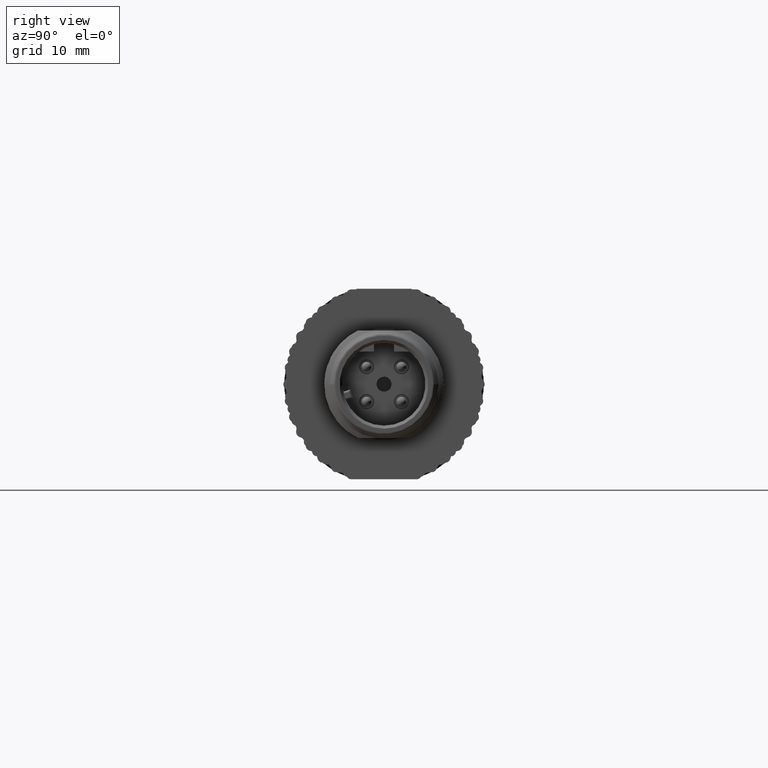
[diagram: clean part render]
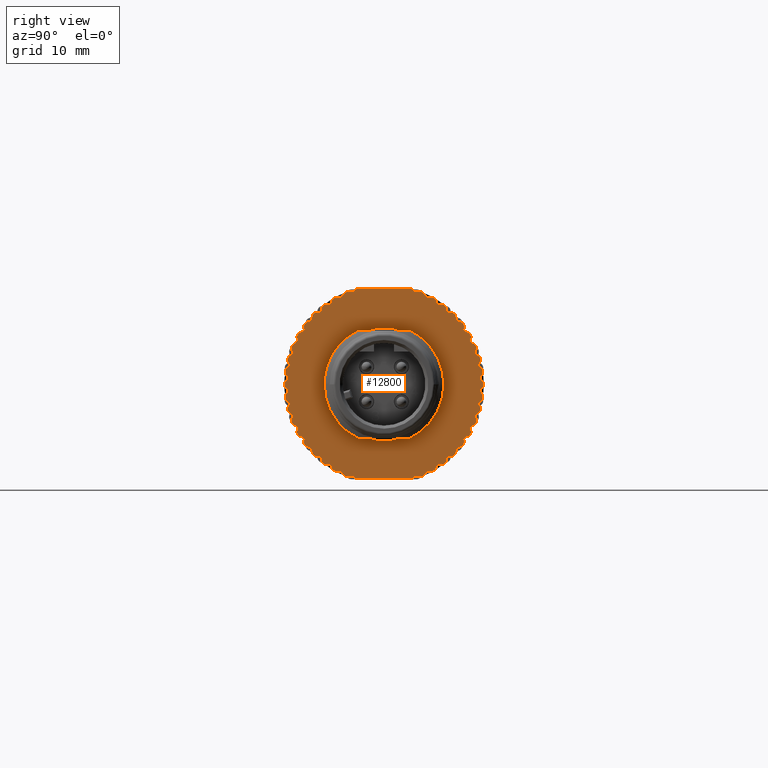
[diagram: same view with one face highlighted and labeled with its STEP entity id]
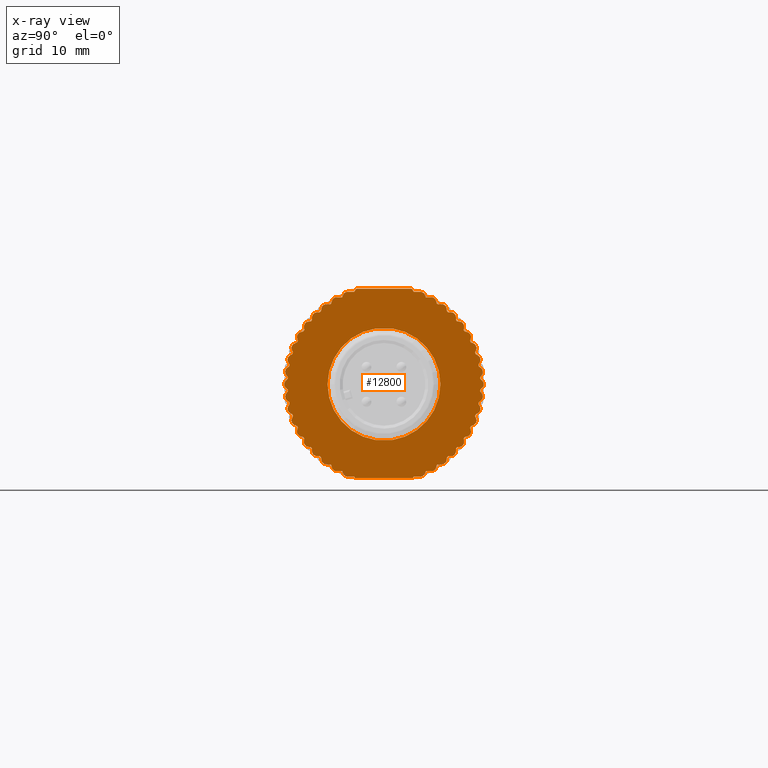
[diagram: x-ray of the same camera — body ghosted, the highlighted face saturated]
A machine part, right view. The second image highlights one B-rep face of the part: STEP entity #12800.
The next image is the same camera in x-ray: the body ghosted, the highlighted face saturated — about 0% of this face is hidden behind the body in this view.
In plain terms, the highlighted planar face has unit normal (1, 0, 0).
Its self-contained STEP definition (entity closure, byte-faithful):
#932=DIRECTION('',(0.E0,-1.E0,0.E0));
#933=VECTOR('',#932,5.491095777550E0);
#934=CARTESIAN_POINT('',(1.462156874149E1,2.745547888775E0,9.586870070337E0));
#935=LINE('',#934,#933);
#936=CARTESIAN_POINT('',(1.462156874149E1,2.459002919398E0,9.177123831153E0));
#937=DIRECTION('',(-1.E0,0.E0,0.E0));
#938=DIRECTION('',(0.E0,5.730899387537E-1,8.194924783665E-1));
#939=AXIS2_PLACEMENT_3D('',#936,#937,#938);
#941=DIRECTION('',(0.E0,5.E-1,-8.660254037844E-1));
#942=VECTOR('',#941,1.725998494260E-1);
#943=CARTESIAN_POINT('',(1.462156874149E1,2.892015621290E0,9.427123831153E0));
#944=LINE('',#943,#942);
#945=DIRECTION('',(0.E0,1.E0,0.E0));
#946=VECTOR('',#945,6.575052917495E-1);
#947=CARTESIAN_POINT('',(1.462156874149E1,2.978315546003E0,9.277647976861E0));
#948=LINE('',#947,#946);
#949=CARTESIAN_POINT('',(1.462156874149E1,3.635820837753E0,8.777647976861E0));
#950=DIRECTION('',(-1.E0,0.E0,0.E0));
#951=DIRECTION('',(0.E0,0.E0,1.E0));
#952=AXIS2_PLACEMENT_3D('',#949,#950,#951);
#954=DIRECTION('',(0.E0,3.826834323651E-1,-9.238795325113E-1));
#955=VECTOR('',#954,2.608625394347E-1);
#956=CARTESIAN_POINT('',(1.462156874149E1,4.097760604008E0,8.968989693044E0));
#957=LINE('',#956,#955);
#958=DIRECTION('',(0.E0,1.E0,0.E0));
#959=VECTOR('',#958,5.528404775588E-1);
#960=CARTESIAN_POINT('',(1.462156874149E1,4.197588375975E0,8.727984132061E0));
#961=LINE('',#960,#959);
#962=CARTESIAN_POINT('',(1.462156874149E1,4.750428853533E0,8.227984132061E0));
#963=DIRECTION('',(-1.E0,0.E0,0.E0));
#964=DIRECTION('',(0.E0,0.E0,1.E0));
#965=AXIS2_PLACEMENT_3D('',#962,#963,#964);
#967=DIRECTION('',(0.E0,2.588190451025E-1,-9.659258262891E-1));
#968=VECTOR('',#967,2.757335046464E-1);
#969=CARTESIAN_POINT('',(1.462156874149E1,5.233391766678E0,8.357393654612E0));
#970=LINE('',#969,#968);
#971=DIRECTION('',(0.E0,1.E0,0.E0));
#972=VECTOR('',#971,3.982547352414E-1);
#973=CARTESIAN_POINT('',(1.462156874149E1,5.385500979321E0,8.037537197533E0));
#974=LINE('',#973,#972);
#975=CARTESIAN_POINT('',(1.462156874149E1,5.783755714563E0,7.537537197533E0));
#976=DIRECTION('',(-1.E0,0.E0,0.E0));
#977=DIRECTION('',(0.E0,0.E0,1.E0));
#978=AXIS2_PLACEMENT_3D('',#975,#976,#977);
#980=DIRECTION('',(0.E0,1.305261922201E-1,-9.914448613738E-1));
#981=VECTOR('',#980,2.757335046464E-1);
#982=CARTESIAN_POINT('',(1.462156874149E1,6.279478145249E0,7.602800293643E0));
#983=LINE('',#982,#981);
#984=DIRECTION('',(0.E0,1.E0,0.E0));
#985=VECTOR('',#984,2.757335046464E-1);
#986=CARTESIAN_POINT('',(1.462156874149E1,6.442387407109E0,7.218120911755E0));
#987=LINE('',#986,#985);
#988=CARTESIAN_POINT('',(1.462156874149E1,6.718120911755E0,6.718120911755E0));
#989=DIRECTION('',(-1.E0,0.E0,0.E0));
#990=DIRECTION('',(0.E0,0.E0,1.E0));
#991=AXIS2_PLACEMENT_3D('',#988,#989,#990);
#993=DIRECTION('',(0.E0,0.E0,-1.E0));
#994=VECTOR('',#993,2.757335046464E-1);
#995=CARTESIAN_POINT('',(1.462156874149E1,7.218120911755E0,6.718120911755E0));
#996=LINE('',#995,#994);
#997=DIRECTION('',(0.E0,9.914448613738E-1,-1.305261922201E-1));
#998=VECTOR('',#997,2.757335046464E-1);
#999=CARTESIAN_POINT('',(1.462156874149E1,7.329425727353E0,6.315468589678E0));
#1000=LINE('',#999,#998);
#1001=CARTESIAN_POINT('',(1.462156874149E1,7.537537197533E0,5.783755714563E0));
#1002=DIRECTION('',(-1.E0,0.E0,0.E0));
#1003=DIRECTION('',(0.E0,1.305261922201E-1,9.914448613738E-1));
#1004=AXIS2_PLACEMENT_3D('',#1001,#1002,#1003);
#1006=DIRECTION('',(0.E0,-1.305261922200E-1,-9.914448613738E-1));
#1007=VECTOR('',#1006,2.757335046464E-1);
#1008=CARTESIAN_POINT('',(1.462156874149E1,8.033259628220E0,5.718492618453E0));
#1009=LINE('',#1008,#1007);
#1010=DIRECTION('',(0.E0,9.659258262891E-1,-2.588190451025E-1));
#1011=VECTOR('',#1010,2.757335046464E-1);
#1012=CARTESIAN_POINT('',(1.462156874149E1,8.091055541301E0,5.304756849053E0));
#1013=LINE('',#1012,#1011);
#1014=CARTESIAN_POINT('',(1.462156874149E1,8.227984132061E0,4.750428853533E0));
#1015=DIRECTION('',(-1.E0,0.E0,0.E0));
#1016=DIRECTION('',(0.E0,2.588190451025E-1,9.659258262891E-1));
#1017=AXIS2_PLACEMENT_3D('',#1014,#1015,#1016);
#1019=DIRECTION('',(0.E0,-2.588190451025E-1,-9.659258262891E-1));
#1020=VECTOR('',#1019,2.757335046464E-1);
#1021=CARTESIAN_POINT('',(1.462156874149E1,8.710947045206E0,4.621019330982E0));
#1022=LINE('',#1021,#1020);
#1023=DIRECTION('',(0.E0,9.238795325113E-1,-3.826834323651E-1));
#1024=VECTOR('',#1023,2.757335046464E-1);
#1025=CARTESIAN_POINT('',(1.462156874149E1,8.714245151673E0,4.203279247984E0));
#1026=LINE('',#1025,#1024);
#1027=CARTESIAN_POINT('',(1.462156874149E1,8.777647976861E0,3.635820837753E0));
#1028=DIRECTION('',(-1.E0,0.E0,0.E0));
#1029=DIRECTION('',(0.E0,3.826834323651E-1,9.238795325113E-1));
#1030=AXIS2_PLACEMENT_3D('',#1027,#1028,#1029);
#1032=DIRECTION('',(0.E0,-3.826834323651E-1,-9.238795325113E-1));
#1033=VECTOR('',#1032,2.757335046464E-1);
#1034=CARTESIAN_POINT('',(1.462156874149E1,9.239587743117E0,3.444479121570E0));
#1035=LINE('',#1034,#1033);
#1036=DIRECTION('',(0.E0,8.660254037844E-1,-5.E-1));
#1037=VECTOR('',#1036,2.757335046464E-1);
#1038=CARTESIAN_POINT('',(1.462156874149E1,9.188331611455E0,3.029882373613E0));
#1039=LINE('',#1038,#1037);
#1040=CARTESIAN_POINT('',(1.462156874149E1,9.177123831153E0,2.459002919398E0));
#1041=DIRECTION('',(-1.E0,0.E0,0.E0));
#1042=DIRECTION('',(0.E0,5.E-1,8.660254037844E-1));
#1043=AXIS2_PLACEMENT_3D('',#1040,#1041,#1042);
#1045=DIRECTION('',(0.E0,-5.E-1,-8.660254037844E-1));
#1046=VECTOR('',#1045,2.757335046464E-1);
#1047=CARTESIAN_POINT('',(1.462156874149E1,9.610136533046E0,2.209002919398E0));
#1048=LINE('',#1047,#1046);
#1049=DIRECTION('',(0.E0,7.933533402912E-1,-6.087614290087E-1));
#1050=VECTOR('',#1049,2.757335046464E-1);
#1051=CARTESIAN_POINT('',(1.462156874149E1,9.505203169878E0,1.804643371788E0));
#1052=LINE('',#1051,#1050);
#1053=CARTESIAN_POINT('',(1.462156874149E1,9.419576552315E0,1.240110779328E0));
#1054=DIRECTION('',(-1.E0,0.E0,0.E0));
#1055=DIRECTION('',(0.E0,6.087614290087E-1,7.933533402912E-1));
#1056=AXIS2_PLACEMENT_3D('',#1053,#1054,#1055);
#1058=DIRECTION('',(0.E0,-6.087614290087E-1,-7.933533402912E-1));
#1059=VECTOR('',#1058,2.757335046464E-1);
#1060=CARTESIAN_POINT('',(1.462156874149E1,9.816253222461E0,9.357300648236E-1));
#1061=LINE('',#1060,#1059);
#1062=DIRECTION('',(0.E0,7.071067811865E-1,-7.071067811865E-1));
#1063=VECTOR('',#1062,2.757335046464E-1);
#1064=CARTESIAN_POINT('',(1.462156874149E1,9.659438066724E0,5.485264215291E-1));
#1065=LINE('',#1064,#1063);
#1066=CARTESIAN_POINT('',(1.462156874149E1,9.500857707067E0,0.E0));
#1067=DIRECTION('',(-1.E0,0.E0,0.E0));
#1068=DIRECTION('',(0.E0,7.071067811865E-1,7.071067811865E-1));
#1069=AXIS2_PLACEMENT_3D('',#1066,#1067,#1068);
#1071=DIRECTION('',(0.E0,-7.071067811865E-1,-7.071067811866E-1));
#1072=VECTOR('',#1071,2.757335046464E-1);
#1073=CARTESIAN_POINT('',(1.462156874149E1,9.854411097660E0,
-3.535533905933E-1));
#1074=LINE('',#1073,#1072);
#1075=DIRECTION('',(0.E0,6.087614290087E-1,-7.933533402912E-1));
#1076=VECTOR('',#1075,2.757335046464E-1);
#1077=CARTESIAN_POINT('',(1.462156874149E1,9.648397300147E0,
-7.169759678822E-1));
#1078=LINE('',#1077,#1076);
#1079=CARTESIAN_POINT('',(1.462156874149E1,9.419576552315E0,-1.240110779328E0));
#1080=DIRECTION('',(-1.E0,0.E0,0.E0));
#1081=DIRECTION('',(0.E0,7.933533402912E-1,6.087614290087E-1));
#1082=AXIS2_PLACEMENT_3D('',#1079,#1080,#1081);
#1084=DIRECTION('',(0.E0,-7.933533402912E-1,-6.087614290087E-1));
#1085=VECTOR('',#1084,2.757335046464E-1);
#1086=CARTESIAN_POINT('',(1.462156874149E1,9.723957266820E0,-1.636787449474E0));
#1087=LINE('',#1086,#1085);
#1088=DIRECTION('',(0.E0,5.E-1,-8.660254037844E-1));
#1089=VECTOR('',#1088,2.757335046464E-1);
#1090=CARTESIAN_POINT('',(1.462156874149E1,9.472269780723E0,-1.970210699700E0));
#1091=LINE('',#1090,#1089);
#1092=CARTESIAN_POINT('',(1.462156874149E1,9.177123831153E0,-2.459002919398E0));
#1093=DIRECTION('',(-1.E0,0.E0,0.E0));
#1094=DIRECTION('',(0.E0,8.660254037844E-1,5.E-1));
#1095=AXIS2_PLACEMENT_3D('',#1092,#1093,#1094);
#1097=DIRECTION('',(0.E0,-8.660254037844E-1,-5.E-1));
#1098=VECTOR('',#1097,2.757335046464E-1);
#1099=CARTESIAN_POINT('',(1.462156874149E1,9.427123831153E0,-2.892015621290E0));
#1100=LINE('',#1099,#1098);
#1101=DIRECTION('',(0.E0,3.826834323651E-1,-9.238795325113E-1));
#1102=VECTOR('',#1101,2.757335046464E-1);
#1103=CARTESIAN_POINT('',(1.462156874149E1,9.134069099141E0,-3.189734580200E0));
#1104=LINE('',#1103,#1102);
#1105=CARTESIAN_POINT('',(1.462156874149E1,8.777647976861E0,-3.635820837753E0));
#1106=DIRECTION('',(-1.E0,0.E0,0.E0));
#1107=DIRECTION('',(0.E0,9.238795325113E-1,3.826834323651E-1));
#1108=AXIS2_PLACEMENT_3D('',#1105,#1106,#1107);
#1110=DIRECTION('',(0.E0,-9.238795325113E-1,-3.826834323651E-1));
#1111=VECTOR('',#1110,2.757335046464E-1);
#1112=CARTESIAN_POINT('',(1.462156874149E1,8.968989693044E0,-4.097760604008E0));
#1113=LINE('',#1112,#1111);
#1114=DIRECTION('',(0.E0,2.588190451025E-1,-9.659258262891E-1));
#1115=VECTOR('',#1114,2.757335046464E-1);
#1116=CARTESIAN_POINT('',(1.462156874149E1,8.639581962830E0,-4.354681217671E0));
#1117=LINE('',#1116,#1115);
#1118=CARTESIAN_POINT('',(1.462156874149E1,8.227984132061E0,-4.750428853533E0));
#1119=DIRECTION('',(-1.E0,0.E0,0.E0));
#1120=DIRECTION('',(0.E0,9.659258262891E-1,2.588190451025E-1));
#1121=AXIS2_PLACEMENT_3D('',#1118,#1119,#1120);
#1123=DIRECTION('',(0.E0,-9.659258262891E-1,-2.588190451025E-1));
#1124=VECTOR('',#1123,2.757335046464E-1);
#1125=CARTESIAN_POINT('',(1.462156874149E1,8.357393654612E0,-5.233391766678E0));
#1126=LINE('',#1125,#1124);
#1127=DIRECTION('',(0.E0,1.305261922201E-1,-9.914448613738E-1));
#1128=VECTOR('',#1127,2.757335046464E-1);
#1129=CARTESIAN_POINT('',(1.462156874149E1,7.997269183791E0,-5.445118052162E0));
#1130=LINE('',#1129,#1128);
#1131=CARTESIAN_POINT('',(1.462156874149E1,7.537537197533E0,-5.783755714563E0));
#1132=DIRECTION('',(-1.E0,0.E0,0.E0));
#1133=DIRECTION('',(0.E0,9.914448613738E-1,1.305261922200E-1));
#1134=AXIS2_PLACEMENT_3D('',#1131,#1132,#1133);
#1136=DIRECTION('',(0.E0,-9.914448613738E-1,-1.305261922201E-1));
#1137=VECTOR('',#1136,2.757335046464E-1);
#1138=CARTESIAN_POINT('',(1.462156874149E1,7.602800293643E0,-6.279478145249E0));
#1139=LINE('',#1138,#1137);
#1140=DIRECTION('',(0.E0,0.E0,-1.E0));
#1141=VECTOR('',#1140,2.757335046464E-1);
#1142=CARTESIAN_POINT('',(1.462156874149E1,7.218120911755E0,-6.442387407109E0));
#1143=LINE('',#1142,#1141);
#1144=CARTESIAN_POINT('',(1.462156874149E1,6.718120911755E0,-6.718120911755E0));
#1145=DIRECTION('',(-1.E0,0.E0,0.E0));
#1146=DIRECTION('',(0.E0,1.E0,0.E0));
#1147=AXIS2_PLACEMENT_3D('',#1144,#1145,#1146);
#1149=DIRECTION('',(0.E0,-1.E0,-1.288459189374E-14));
#1150=VECTOR('',#1149,2.757335046464E-1);
#1151=CARTESIAN_POINT('',(1.462156874149E1,6.718120911755E0,-7.218120911755E0));
#1152=LINE('',#1151,#1150);
#1153=DIRECTION('',(0.E0,-1.305261922201E-1,-9.914448613738E-1));
#1154=VECTOR('',#1153,2.757335046464E-1);
#1155=CARTESIAN_POINT('',(1.462156874149E1,6.315468589678E0,-7.329425727353E0));
#1156=LINE('',#1155,#1154);
#1157=CARTESIAN_POINT('',(1.462156874149E1,5.783755714563E0,-7.537537197533E0));
#1158=DIRECTION('',(-1.E0,0.E0,0.E0));
#1159=DIRECTION('',(0.E0,9.914448613738E-1,-1.305261922201E-1));
#1160=AXIS2_PLACEMENT_3D('',#1157,#1158,#1159);
#1162=DIRECTION('',(0.E0,-1.E0,0.E0));
#1163=VECTOR('',#1162,3.982547352414E-1);
#1164=CARTESIAN_POINT('',(1.462156874149E1,5.783755714563E0,-8.037537197533E0));
#1165=LINE('',#1164,#1163);
#1166=DIRECTION('',(0.E0,-2.588190451025E-1,-9.659258262891E-1));
#1167=VECTOR('',#1166,2.757335046464E-1);
#1168=CARTESIAN_POINT('',(1.462156874149E1,5.304756849053E0,-8.091055541301E0));
#1169=LINE('',#1168,#1167);
#1170=CARTESIAN_POINT('',(1.462156874149E1,4.750428853533E0,-8.227984132061E0));
#1171=DIRECTION('',(-1.E0,0.E0,0.E0));
#1172=DIRECTION('',(0.E0,9.659258262891E-1,-2.588190451025E-1));
#1173=AXIS2_PLACEMENT_3D('',#1170,#1171,#1172);
#1175=DIRECTION('',(0.E0,-1.E0,0.E0));
#1176=VECTOR('',#1175,5.528404775588E-1);
#1177=CARTESIAN_POINT('',(1.462156874149E1,4.750428853533E0,-8.727984132061E0));
#1178=LINE('',#1177,#1176);
#1179=DIRECTION('',(0.E0,-3.826834323651E-1,-9.238795325113E-1));
#1180=VECTOR('',#1179,2.608625394347E-1);
#1181=CARTESIAN_POINT('',(1.462156874149E1,4.197588375975E0,-8.727984132061E0));
#1182=LINE('',#1181,#1180);
#1183=CARTESIAN_POINT('',(1.462156874149E1,3.635820837753E0,-8.777647976861E0));
#1184=DIRECTION('',(-1.E0,0.E0,0.E0));
#1185=DIRECTION('',(0.E0,9.238795325113E-1,-3.826834323651E-1));
#1186=AXIS2_PLACEMENT_3D('',#1183,#1184,#1185);
#1188=DIRECTION('',(0.E0,-1.E0,0.E0));
#1189=VECTOR('',#1188,6.575052917495E-1);
#1190=CARTESIAN_POINT('',(1.462156874149E1,3.635820837753E0,-9.277647976861E0));
#1191=LINE('',#1190,#1189);
#1192=DIRECTION('',(0.E0,-5.E-1,-8.660254037844E-1));
#1193=VECTOR('',#1192,1.564410838412E-1);
#1194=CARTESIAN_POINT('',(1.462156874149E1,2.978315546003E0,-9.277647976861E0));
#1195=LINE('',#1194,#1193);
#1196=DIRECTION('',(0.E0,1.E0,0.E0));
#1197=VECTOR('',#1196,5.800190008165E0);
#1198=CARTESIAN_POINT('',(1.462156874149E1,-2.900095004083E0,
-9.413129929663E0));
#1199=LINE('',#1198,#1197);
#1200=DIRECTION('',(0.E0,-5.E-1,8.660254037844E-1));
#1201=VECTOR('',#1200,1.564410838412E-1);
#1202=CARTESIAN_POINT('',(1.462156874149E1,-2.900095004083E0,
-9.413129929663E0));
#1203=LINE('',#1202,#1201);
#1204=DIRECTION('',(0.E0,-1.E0,0.E0));
#1205=VECTOR('',#1204,6.575052917495E-1);
#1206=CARTESIAN_POINT('',(1.462156874149E1,-2.978315546003E0,
-9.277647976861E0));
#1207=LINE('',#1206,#1205);
#1208=CARTESIAN_POINT('',(1.462156874149E1,-3.635820837753E0,
-8.777647976861E0));
#1209=DIRECTION('',(-1.E0,0.E0,0.E0));
#1210=DIRECTION('',(0.E0,0.E0,-1.E0));
#1211=AXIS2_PLACEMENT_3D('',#1208,#1209,#1210);
#1213=DIRECTION('',(0.E0,-3.826834323651E-1,9.238795325113E-1));
#1214=VECTOR('',#1213,2.608625394347E-1);
#1215=CARTESIAN_POINT('',(1.462156874149E1,-4.097760604008E0,
-8.968989693044E0));
#1216=LINE('',#1215,#1214);
#1217=DIRECTION('',(0.E0,-1.E0,0.E0));
#1218=VECTOR('',#1217,5.528404775588E-1);
#1219=CARTESIAN_POINT('',(1.462156874149E1,-4.197588375975E0,
-8.727984132061E0));
#1220=LINE('',#1219,#1218);
#1221=CARTESIAN_POINT('',(1.462156874149E1,-4.750428853533E0,
-8.227984132061E0));
#1222=DIRECTION('',(-1.E0,0.E0,0.E0));
#1223=DIRECTION('',(0.E0,-1.136868377216E-13,-1.E0));
#1224=AXIS2_PLACEMENT_3D('',#1221,#1222,#1223);
#1226=DIRECTION('',(0.E0,-2.588190451025E-1,9.659258262891E-1));
#1227=VECTOR('',#1226,2.757335046464E-1);
#1228=CARTESIAN_POINT('',(1.462156874149E1,-5.233391766678E0,
-8.357393654612E0));
#1229=LINE('',#1228,#1227);
#1230=DIRECTION('',(0.E0,-1.E0,0.E0));
#1231=VECTOR('',#1230,3.982547352414E-1);
#1232=CARTESIAN_POINT('',(1.462156874149E1,-5.385500979321E0,
-8.037537197533E0));
#1233=LINE('',#1232,#1231);
#1234=CARTESIAN_POINT('',(1.462156874149E1,-5.783755714563E0,
-7.537537197533E0));
#1235=DIRECTION('',(-1.E0,0.E0,0.E0));
#1236=DIRECTION('',(0.E0,-3.907985046681E-14,-1.E0));
#1237=AXIS2_PLACEMENT_3D('',#1234,#1235,#1236);
#1239=DIRECTION('',(0.E0,-1.305261922201E-1,9.914448613738E-1));
#1240=VECTOR('',#1239,2.757335046464E-1);
#1241=CARTESIAN_POINT('',(1.462156874149E1,-6.279478145249E0,
-7.602800293643E0));
#1242=LINE('',#1241,#1240);
#1243=DIRECTION('',(0.E0,-1.E0,0.E0));
#1244=VECTOR('',#1243,2.757335046464E-1);
#1245=CARTESIAN_POINT('',(1.462156874149E1,-6.442387407109E0,
-7.218120911755E0));
#1246=LINE('',#1245,#1244);
#1247=CARTESIAN_POINT('',(1.462156874149E1,-6.718120911755E0,
-6.718120911755E0));
#1248=DIRECTION('',(-1.E0,0.E0,0.E0));
#1249=DIRECTION('',(0.E0,0.E0,-1.E0));
#1250=AXIS2_PLACEMENT_3D('',#1247,#1248,#1249);
#1252=DIRECTION('',(0.E0,-1.288459189374E-14,1.E0));
#1253=VECTOR('',#1252,2.757335046464E-1);
#1254=CARTESIAN_POINT('',(1.462156874149E1,-7.218120911755E0,
-6.718120911755E0));
#1255=LINE('',#1254,#1253);
#1256=DIRECTION('',(0.E0,-9.914448613738E-1,1.305261922201E-1));
#1257=VECTOR('',#1256,2.757335046464E-1);
#1258=CARTESIAN_POINT('',(1.462156874149E1,-7.329425727353E0,
-6.315468589678E0));
#1259=LINE('',#1258,#1257);
#1260=CARTESIAN_POINT('',(1.462156874149E1,-7.537537197533E0,
-5.783755714563E0));
#1261=DIRECTION('',(-1.E0,0.E0,0.E0));
#1262=DIRECTION('',(0.E0,-1.305261922201E-1,-9.914448613738E-1));
#1263=AXIS2_PLACEMENT_3D('',#1260,#1261,#1262);
#1265=DIRECTION('',(0.E0,1.305261922200E-1,9.914448613738E-1));
#1266=VECTOR('',#1265,2.757335046464E-1);
#1267=CARTESIAN_POINT('',(1.462156874149E1,-8.033259628220E0,
-5.718492618453E0));
#1268=LINE('',#1267,#1266);
#1269=DIRECTION('',(0.E0,-9.659258262891E-1,2.588190451025E-1));
#1270=VECTOR('',#1269,2.757335046464E-1);
#1271=CARTESIAN_POINT('',(1.462156874149E1,-8.091055541301E0,
-5.304756849053E0));
#1272=LINE('',#1271,#1270);
#1273=CARTESIAN_POINT('',(1.462156874149E1,-8.227984132061E0,
-4.750428853533E0));
#1274=DIRECTION('',(-1.E0,0.E0,0.E0));
#1275=DIRECTION('',(0.E0,-2.588190451025E-1,-9.659258262891E-1));
#1276=AXIS2_PLACEMENT_3D('',#1273,#1274,#1275);
#1278=DIRECTION('',(0.E0,2.588190451025E-1,9.659258262891E-1));
#1279=VECTOR('',#1278,2.757335046464E-1);
#1280=CARTESIAN_POINT('',(1.462156874149E1,-8.710947045206E0,
-4.621019330982E0));
#1281=LINE('',#1280,#1279);
#1282=DIRECTION('',(0.E0,-9.238795325113E-1,3.826834323651E-1));
#1283=VECTOR('',#1282,2.757335046464E-1);
#1284=CARTESIAN_POINT('',(1.462156874149E1,-8.714245151673E0,
-4.203279247984E0));
#1285=LINE('',#1284,#1283);
#1286=CARTESIAN_POINT('',(1.462156874149E1,-8.777647976861E0,
-3.635820837753E0));
#1287=DIRECTION('',(-1.E0,0.E0,0.E0));
#1288=DIRECTION('',(0.E0,-3.826834323651E-1,-9.238795325113E-1));
#1289=AXIS2_PLACEMENT_3D('',#1286,#1287,#1288);
#1291=DIRECTION('',(0.E0,3.826834323651E-1,9.238795325113E-1));
#1292=VECTOR('',#1291,2.757335046464E-1);
#1293=CARTESIAN_POINT('',(1.462156874149E1,-9.239587743117E0,
-3.444479121570E0));
#1294=LINE('',#1293,#1292);
#1295=DIRECTION('',(0.E0,-8.660254037844E-1,5.E-1));
#1296=VECTOR('',#1295,2.757335046464E-1);
#1297=CARTESIAN_POINT('',(1.462156874149E1,-9.188331611455E0,
-3.029882373613E0));
#1298=LINE('',#1297,#1296);
#1299=CARTESIAN_POINT('',(1.462156874149E1,-9.177123831153E0,
-2.459002919398E0));
#1300=DIRECTION('',(-1.E0,0.E0,0.E0));
#1301=DIRECTION('',(0.E0,-5.E-1,-8.660254037844E-1));
#1302=AXIS2_PLACEMENT_3D('',#1299,#1300,#1301);
#1304=DIRECTION('',(0.E0,5.E-1,8.660254037844E-1));
#1305=VECTOR('',#1304,2.757335046464E-1);
#1306=CARTESIAN_POINT('',(1.462156874149E1,-9.610136533046E0,
-2.209002919398E0));
#1307=LINE('',#1306,#1305);
#1308=DIRECTION('',(0.E0,-7.933533402912E-1,6.087614290087E-1));
#1309=VECTOR('',#1308,2.757335046464E-1);
#1310=CARTESIAN_POINT('',(1.462156874149E1,-9.505203169878E0,
-1.804643371788E0));
#1311=LINE('',#1310,#1309);
#1312=CARTESIAN_POINT('',(1.462156874149E1,-9.419576552315E0,
-1.240110779328E0));
#1313=DIRECTION('',(-1.E0,0.E0,0.E0));
#1314=DIRECTION('',(0.E0,-6.087614290087E-1,-7.933533402912E-1));
#1315=AXIS2_PLACEMENT_3D('',#1312,#1313,#1314);
#1317=DIRECTION('',(0.E0,6.087614290087E-1,7.933533402912E-1));
#1318=VECTOR('',#1317,2.757335046464E-1);
#1319=CARTESIAN_POINT('',(1.462156874149E1,-9.816253222461E0,
-9.357300648236E-1));
#1320=LINE('',#1319,#1318);
#1321=DIRECTION('',(0.E0,-7.071067811865E-1,7.071067811865E-1));
#1322=VECTOR('',#1321,2.757335046464E-1);
#1323=CARTESIAN_POINT('',(1.462156874149E1,-9.659438066724E0,
-5.485264215291E-1));
#1324=LINE('',#1323,#1322);
#1325=CARTESIAN_POINT('',(1.462156874149E1,-9.500857707067E0,0.E0));
#1326=DIRECTION('',(-1.E0,0.E0,0.E0));
#1327=DIRECTION('',(0.E0,-7.071067811865E-1,-7.071067811865E-1));
#1328=AXIS2_PLACEMENT_3D('',#1325,#1326,#1327);
#1330=DIRECTION('',(0.E0,7.071067811865E-1,7.071067811866E-1));
#1331=VECTOR('',#1330,2.757335046464E-1);
#1332=CARTESIAN_POINT('',(1.462156874149E1,-9.854411097660E0,
3.535533905933E-1));
#1333=LINE('',#1332,#1331);
#1334=DIRECTION('',(0.E0,-6.087614290087E-1,7.933533402912E-1));
#1335=VECTOR('',#1334,2.757335046464E-1);
#1336=CARTESIAN_POINT('',(1.462156874149E1,-9.648397300147E0,
7.169759678822E-1));
#1337=LINE('',#1336,#1335);
#1338=CARTESIAN_POINT('',(1.462156874149E1,-9.419576552315E0,1.240110779328E0));
#1339=DIRECTION('',(-1.E0,0.E0,0.E0));
#1340=DIRECTION('',(0.E0,-7.933533402912E-1,-6.087614290087E-1));
#1341=AXIS2_PLACEMENT_3D('',#1338,#1339,#1340);
#1343=DIRECTION('',(0.E0,7.933533402912E-1,6.087614290087E-1));
#1344=VECTOR('',#1343,2.757335046464E-1);
#1345=CARTESIAN_POINT('',(1.462156874149E1,-9.723957266820E0,1.636787449474E0));
#1346=LINE('',#1345,#1344);
#1347=DIRECTION('',(0.E0,-5.E-1,8.660254037844E-1));
#1348=VECTOR('',#1347,2.757335046464E-1);
#1349=CARTESIAN_POINT('',(1.462156874149E1,-9.472269780723E0,1.970210699700E0));
#1350=LINE('',#1349,#1348);
#1351=CARTESIAN_POINT('',(1.462156874149E1,-9.177123831153E0,2.459002919398E0));
#1352=DIRECTION('',(-1.E0,0.E0,0.E0));
#1353=DIRECTION('',(0.E0,-8.660254037844E-1,-5.E-1));
#1354=AXIS2_PLACEMENT_3D('',#1351,#1352,#1353);
#1356=DIRECTION('',(0.E0,8.660254037844E-1,5.E-1));
#1357=VECTOR('',#1356,2.757335046464E-1);
#1358=CARTESIAN_POINT('',(1.462156874149E1,-9.427123831153E0,2.892015621290E0));
#1359=LINE('',#1358,#1357);
#1360=DIRECTION('',(0.E0,-3.826834323651E-1,9.238795325113E-1));
#1361=VECTOR('',#1360,2.757335046464E-1);
#1362=CARTESIAN_POINT('',(1.462156874149E1,-9.134069099141E0,3.189734580200E0));
#1363=LINE('',#1362,#1361);
#1364=CARTESIAN_POINT('',(1.462156874149E1,-8.777647976861E0,3.635820837753E0));
#1365=DIRECTION('',(-1.E0,0.E0,0.E0));
#1366=DIRECTION('',(0.E0,-9.238795325113E-1,-3.826834323651E-1));
#1367=AXIS2_PLACEMENT_3D('',#1364,#1365,#1366);
#1369=DIRECTION('',(0.E0,9.238795325113E-1,3.826834323651E-1));
#1370=VECTOR('',#1369,2.757335046464E-1);
#1371=CARTESIAN_POINT('',(1.462156874149E1,-8.968989693044E0,4.097760604008E0));
#1372=LINE('',#1371,#1370);
#1373=DIRECTION('',(0.E0,-2.588190451025E-1,9.659258262891E-1));
#1374=VECTOR('',#1373,2.757335046464E-1);
#1375=CARTESIAN_POINT('',(1.462156874149E1,-8.639581962830E0,4.354681217671E0));
#1376=LINE('',#1375,#1374);
#1377=CARTESIAN_POINT('',(1.462156874149E1,-8.227984132061E0,4.750428853533E0));
#1378=DIRECTION('',(-1.E0,0.E0,0.E0));
#1379=DIRECTION('',(0.E0,-9.659258262891E-1,-2.588190451025E-1));
#1380=AXIS2_PLACEMENT_3D('',#1377,#1378,#1379);
#1382=DIRECTION('',(0.E0,9.659258262891E-1,2.588190451025E-1));
#1383=VECTOR('',#1382,2.757335046464E-1);
#1384=CARTESIAN_POINT('',(1.462156874149E1,-8.357393654612E0,5.233391766678E0));
#1385=LINE('',#1384,#1383);
#1386=DIRECTION('',(0.E0,-1.305261922201E-1,9.914448613738E-1));
#1387=VECTOR('',#1386,2.757335046464E-1);
#1388=CARTESIAN_POINT('',(1.462156874149E1,-7.997269183791E0,5.445118052162E0));
#1389=LINE('',#1388,#1387);
#1390=CARTESIAN_POINT('',(1.462156874149E1,-7.537537197533E0,5.783755714563E0));
#1391=DIRECTION('',(-1.E0,0.E0,0.E0));
#1392=DIRECTION('',(0.E0,-9.914448613738E-1,-1.305261922200E-1));
#1393=AXIS2_PLACEMENT_3D('',#1390,#1391,#1392);
#1395=DIRECTION('',(0.E0,9.914448613738E-1,1.305261922201E-1));
#1396=VECTOR('',#1395,2.757335046464E-1);
#1397=CARTESIAN_POINT('',(1.462156874149E1,-7.602800293643E0,6.279478145249E0));
#1398=LINE('',#1397,#1396);
#1399=DIRECTION('',(0.E0,0.E0,1.E0));
#1400=VECTOR('',#1399,2.757335046464E-1);
#1401=CARTESIAN_POINT('',(1.462156874149E1,-7.218120911755E0,6.442387407109E0));
#1402=LINE('',#1401,#1400);
#1403=CARTESIAN_POINT('',(1.462156874149E1,-6.718120911755E0,6.718120911755E0));
#1404=DIRECTION('',(-1.E0,0.E0,0.E0));
#1405=DIRECTION('',(0.E0,-1.E0,0.E0));
#1406=AXIS2_PLACEMENT_3D('',#1403,#1404,#1405);
#1408=DIRECTION('',(0.E0,1.E0,1.288459189374E-14));
#1409=VECTOR('',#1408,2.757335046464E-1);
#1410=CARTESIAN_POINT('',(1.462156874149E1,-6.718120911755E0,7.218120911755E0));
#1411=LINE('',#1410,#1409);
#1412=DIRECTION('',(0.E0,1.305261922201E-1,9.914448613738E-1));
#1413=VECTOR('',#1412,2.757335046464E-1);
#1414=CARTESIAN_POINT('',(1.462156874149E1,-6.315468589678E0,7.329425727353E0));
#1415=LINE('',#1414,#1413);
#1416=CARTESIAN_POINT('',(1.462156874149E1,-5.783755714563E0,7.537537197533E0));
#1417=DIRECTION('',(-1.E0,0.E0,0.E0));
#1418=DIRECTION('',(0.E0,-9.914448613738E-1,1.305261922201E-1));
#1419=AXIS2_PLACEMENT_3D('',#1416,#1417,#1418);
#1421=DIRECTION('',(0.E0,1.E0,0.E0));
#1422=VECTOR('',#1421,3.982547352414E-1);
#1423=CARTESIAN_POINT('',(1.462156874149E1,-5.783755714563E0,8.037537197533E0));
#1424=LINE('',#1423,#1422);
#1425=DIRECTION('',(0.E0,2.588190451025E-1,9.659258262891E-1));
#1426=VECTOR('',#1425,2.757335046464E-1);
#1427=CARTESIAN_POINT('',(1.462156874149E1,-5.304756849053E0,8.091055541301E0));
#1428=LINE('',#1427,#1426);
#1429=CARTESIAN_POINT('',(1.462156874149E1,-4.750428853533E0,8.227984132061E0));
#1430=DIRECTION('',(-1.E0,0.E0,0.E0));
#1431=DIRECTION('',(0.E0,-9.659258262891E-1,2.588190451025E-1));
#1432=AXIS2_PLACEMENT_3D('',#1429,#1430,#1431);
#1434=DIRECTION('',(0.E0,1.E0,0.E0));
#1435=VECTOR('',#1434,5.528404775588E-1);
#1436=CARTESIAN_POINT('',(1.462156874149E1,-4.750428853533E0,8.727984132061E0));
#1437=LINE('',#1436,#1435);
#1438=DIRECTION('',(0.E0,3.826834323651E-1,9.238795325113E-1));
#1439=VECTOR('',#1438,2.608625394347E-1);
#1440=CARTESIAN_POINT('',(1.462156874149E1,-4.197588375975E0,8.727984132061E0));
#1441=LINE('',#1440,#1439);
#1442=CARTESIAN_POINT('',(1.462156874149E1,-3.635820837753E0,8.777647976861E0));
#1443=DIRECTION('',(-1.E0,0.E0,0.E0));
#1444=DIRECTION('',(0.E0,-9.238795325113E-1,3.826834323651E-1));
#1445=AXIS2_PLACEMENT_3D('',#1442,#1443,#1444);
#1447=DIRECTION('',(0.E0,1.E0,0.E0));
#1448=VECTOR('',#1447,6.575052917495E-1);
#1449=CARTESIAN_POINT('',(1.462156874149E1,-3.635820837753E0,9.277647976861E0));
#1450=LINE('',#1449,#1448);
#1451=DIRECTION('',(0.E0,5.E-1,8.660254037844E-1));
#1452=VECTOR('',#1451,1.725998494259E-1);
#1453=CARTESIAN_POINT('',(1.462156874149E1,-2.978315546003E0,9.277647976861E0));
#1454=LINE('',#1453,#1452);
#1455=CARTESIAN_POINT('',(1.462156874149E1,-2.459002919398E0,9.177123831153E0));
#1456=DIRECTION('',(-1.E0,0.E0,0.E0));
#1457=DIRECTION('',(0.E0,-8.660254037844E-1,5.E-1));
#1458=AXIS2_PLACEMENT_3D('',#1455,#1456,#1457);
#1460=DIRECTION('',(0.E0,-1.E0,0.E0));
#1461=VECTOR('',#1460,1.623110901941E0);
#1462=CARTESIAN_POINT('',(1.462156874149E1,8.115554509705E-1,5.6E0));
#1463=LINE('',#1462,#1461);
#1464=DIRECTION('',(0.E0,1.E0,0.E0));
#1465=VECTOR('',#1464,1.623110901941E0);
#1466=CARTESIAN_POINT('',(1.462156874149E1,-8.115554509705E-1,-5.6E0));
#1467=LINE('',#1466,#1465);
#1491=CARTESIAN_POINT('',(1.462156874149E1,0.E0,0.E0));
#1492=DIRECTION('',(1.E0,0.E0,0.E0));
#1493=DIRECTION('',(0.E0,5.566409280952E-1,8.307531987114E-1));
#1494=AXIS2_PLACEMENT_3D('',#1491,#1492,#1493);
#1530=CARTESIAN_POINT('',(1.462156874149E1,0.E0,0.E0));
#1531=DIRECTION('',(1.E0,0.E0,0.E0));
#1532=DIRECTION('',(0.E0,6.658798353601E-1,7.460590089670E-1));
#1533=AXIS2_PLACEMENT_3D('',#1530,#1531,#1532);
#1569=CARTESIAN_POINT('',(1.462156874149E1,0.E0,0.E0));
#1570=DIRECTION('',(1.E0,0.E0,0.E0));
#1571=DIRECTION('',(0.E0,7.575633826722E-1,6.527616113363E-1));
#1572=AXIS2_PLACEMENT_3D('',#1569,#1570,#1571);
#1608=CARTESIAN_POINT('',(1.462156874149E1,0.E0,0.E0));
#1609=DIRECTION('',(1.E0,0.E0,0.E0));
#1610=DIRECTION('',(0.E0,8.362848104704E-1,5.482952815559E-1));
#1611=AXIS2_PLACEMENT_3D('',#1608,#1609,#1610);
#1647=CARTESIAN_POINT('',(1.462156874149E1,0.E0,0.E0));
#1648=DIRECTION('',(1.E0,0.E0,0.E0));
#1649=DIRECTION('',(0.E0,9.006971732996E-1,4.344474674919E-1));
#1650=AXIS2_PLACEMENT_3D('',#1647,#1648,#1649);
#1686=CARTESIAN_POINT('',(1.462156874149E1,0.E0,0.E0));
#1687=DIRECTION('',(1.E0,0.E0,0.E0));
#1688=DIRECTION('',(0.E0,9.496983577731E-1,3.131661368076E-1));
#1689=AXIS2_PLACEMENT_3D('',#1686,#1687,#1688);
#1725=CARTESIAN_POINT('',(1.462156874149E1,0.E0,0.E0));
#1726=DIRECTION('',(1.E0,0.E0,0.E0));
#1727=DIRECTION('',(0.E0,9.824499400391E-1,1.865264466964E-1));
#1728=AXIS2_PLACEMENT_3D('',#1725,#1726,#1727);
#1764=CARTESIAN_POINT('',(1.462156874149E1,0.E0,0.E0));
#1765=DIRECTION('',(1.E0,0.E0,0.E0));
#1766=DIRECTION('',(0.E0,9.983915314444E-1,5.669523736734E-2));
#1767=AXIS2_PLACEMENT_3D('',#1764,#1765,#1766);
#1803=CARTESIAN_POINT('',(1.462156874149E1,0.E0,0.E0));
#1804=DIRECTION('',(1.E0,0.E0,0.E0));
#1805=DIRECTION('',(0.E0,9.972503669402E-1,-7.410604319196E-2));
#1806=AXIS2_PLACEMENT_3D('',#1803,#1804,#1805);
#1842=CARTESIAN_POINT('',(1.462156874149E1,0.E0,0.E0));
#1843=DIRECTION('',(1.E0,0.E0,0.E0));
#1844=DIRECTION('',(0.E0,9.790459721677E-1,-2.036393488062E-1));
#1845=AXIS2_PLACEMENT_3D('',#1842,#1843,#1844);
#1881=CARTESIAN_POINT('',(1.462156874149E1,0.E0,0.E0));
#1882=DIRECTION('',(1.E0,0.E0,0.E0));
#1883=DIRECTION('',(0.E0,9.440898293686E-1,-3.296883287028E-1));
#1884=AXIS2_PLACEMENT_3D('',#1881,#1882,#1883);
#1920=CARTESIAN_POINT('',(1.462156874149E1,0.E0,0.E0));
#1921=DIRECTION('',(1.E0,0.E0,0.E0));
#1922=DIRECTION('',(0.E0,8.929800478378E-1,-4.500962498885E-1));
#1923=AXIS2_PLACEMENT_3D('',#1920,#1921,#1922);
#1959=CARTESIAN_POINT('',(1.462156874149E1,0.E0,0.E0));
#1960=DIRECTION('',(1.E0,0.E0,0.E0));
#1961=DIRECTION('',(0.E0,8.265911301076E-1,-5.628028994483E-1));
#1962=AXIS2_PLACEMENT_3D('',#1959,#1960,#1961);
#1998=CARTESIAN_POINT('',(1.462156874149E1,0.E0,0.E0));
#1999=DIRECTION('',(1.E0,0.E0,0.E0));
#2000=DIRECTION('',(0.E0,7.460590089670E-1,-6.658798353601E-1));
#2001=AXIS2_PLACEMENT_3D('',#1998,#1999,#2000);
#2037=CARTESIAN_POINT('',(1.462156874149E1,0.E0,0.E0));
#2038=DIRECTION('',(1.E0,0.E0,0.E0));
#2039=DIRECTION('',(0.E0,6.527616113363E-1,-7.575633826722E-1));
#2040=AXIS2_PLACEMENT_3D('',#2037,#2038,#2039);
#2076=CARTESIAN_POINT('',(1.462156874149E1,0.E0,0.E0));
#2077=DIRECTION('',(1.E0,0.E0,0.E0));
#2078=DIRECTION('',(0.E0,5.482952815559E-1,-8.362848104704E-1));
#2079=AXIS2_PLACEMENT_3D('',#2076,#2077,#2078);
#2214=CARTESIAN_POINT('',(1.462156874149E1,0.E0,0.E0));
#2215=DIRECTION('',(1.E0,0.E0,0.E0));
#2216=DIRECTION('',(0.E0,-5.566409280952E-1,-8.307531987114E-1));
#2217=AXIS2_PLACEMENT_3D('',#2214,#2215,#2216);
#2253=CARTESIAN_POINT('',(1.462156874149E1,0.E0,0.E0));
#2254=DIRECTION('',(1.E0,0.E0,0.E0));
#2255=DIRECTION('',(0.E0,-6.658798353601E-1,-7.460590089670E-1));
#2256=AXIS2_PLACEMENT_3D('',#2253,#2254,#2255);
#2292=CARTESIAN_POINT('',(1.462156874149E1,0.E0,0.E0));
#2293=DIRECTION('',(1.E0,0.E0,0.E0));
#2294=DIRECTION('',(0.E0,-7.575633826722E-1,-6.527616113363E-1));
#2295=AXIS2_PLACEMENT_3D('',#2292,#2293,#2294);
#2331=CARTESIAN_POINT('',(1.462156874149E1,0.E0,0.E0));
#2332=DIRECTION('',(1.E0,0.E0,0.E0));
#2333=DIRECTION('',(0.E0,-8.362848104704E-1,-5.482952815559E-1));
#2334=AXIS2_PLACEMENT_3D('',#2331,#2332,#2333);
#2370=CARTESIAN_POINT('',(1.462156874149E1,0.E0,0.E0));
#2371=DIRECTION('',(1.E0,0.E0,0.E0));
#2372=DIRECTION('',(0.E0,-9.006971732996E-1,-4.344474674919E-1));
#2373=AXIS2_PLACEMENT_3D('',#2370,#2371,#2372);
#2409=CARTESIAN_POINT('',(1.462156874149E1,0.E0,0.E0));
#2410=DIRECTION('',(1.E0,0.E0,0.E0));
#2411=DIRECTION('',(0.E0,-9.496983577731E-1,-3.131661368076E-1));
#2412=AXIS2_PLACEMENT_3D('',#2409,#2410,#2411);
#2448=CARTESIAN_POINT('',(1.462156874149E1,0.E0,0.E0));
#2449=DIRECTION('',(1.E0,0.E0,0.E0));
#2450=DIRECTION('',(0.E0,-9.824499400391E-1,-1.865264466964E-1));
#2451=AXIS2_PLACEMENT_3D('',#2448,#2449,#2450);
#2487=CARTESIAN_POINT('',(1.462156874149E1,0.E0,0.E0));
#2488=DIRECTION('',(1.E0,0.E0,0.E0));
#2489=DIRECTION('',(0.E0,-9.983915314444E-1,-5.669523736734E-2));
#2490=AXIS2_PLACEMENT_3D('',#2487,#2488,#2489);
#2526=CARTESIAN_POINT('',(1.462156874149E1,0.E0,0.E0));
#2527=DIRECTION('',(1.E0,0.E0,0.E0));
#2528=DIRECTION('',(0.E0,-9.972503669402E-1,7.410604319196E-2));
#2529=AXIS2_PLACEMENT_3D('',#2526,#2527,#2528);
#2565=CARTESIAN_POINT('',(1.462156874149E1,0.E0,0.E0));
#2566=DIRECTION('',(1.E0,0.E0,0.E0));
#2567=DIRECTION('',(0.E0,-9.790459721677E-1,2.036393488062E-1));
#2568=AXIS2_PLACEMENT_3D('',#2565,#2566,#2567);
#2604=CARTESIAN_POINT('',(1.462156874149E1,0.E0,0.E0));
#2605=DIRECTION('',(1.E0,0.E0,0.E0));
#2606=DIRECTION('',(0.E0,-9.440898293686E-1,3.296883287028E-1));
#2607=AXIS2_PLACEMENT_3D('',#2604,#2605,#2606);
#2643=CARTESIAN_POINT('',(1.462156874149E1,0.E0,0.E0));
#2644=DIRECTION('',(1.E0,0.E0,0.E0));
#2645=DIRECTION('',(0.E0,-8.929800478378E-1,4.500962498885E-1));
#2646=AXIS2_PLACEMENT_3D('',#2643,#2644,#2645);
#2682=CARTESIAN_POINT('',(1.462156874149E1,0.E0,0.E0));
#2683=DIRECTION('',(1.E0,0.E0,0.E0));
#2684=DIRECTION('',(0.E0,-8.265911301076E-1,5.628028994483E-1));
#2685=AXIS2_PLACEMENT_3D('',#2682,#2683,#2684);
#2721=CARTESIAN_POINT('',(1.462156874149E1,0.E0,0.E0));
#2722=DIRECTION('',(1.E0,0.E0,0.E0));
#2723=DIRECTION('',(0.E0,-7.460590089670E-1,6.658798353601E-1));
#2724=AXIS2_PLACEMENT_3D('',#2721,#2722,#2723);
#2760=CARTESIAN_POINT('',(1.462156874149E1,0.E0,0.E0));
#2761=DIRECTION('',(1.E0,0.E0,0.E0));
#2762=DIRECTION('',(0.E0,-6.527616113363E-1,7.575633826722E-1));
#2763=AXIS2_PLACEMENT_3D('',#2760,#2761,#2762);
#2799=CARTESIAN_POINT('',(1.462156874149E1,0.E0,0.E0));
#2800=DIRECTION('',(1.E0,0.E0,0.E0));
#2801=DIRECTION('',(0.E0,-5.482952815559E-1,8.362848104704E-1));
#2802=AXIS2_PLACEMENT_3D('',#2799,#2800,#2801);
#5494=CARTESIAN_POINT('',(1.462156874149E1,0.E0,0.E0));
#5495=DIRECTION('',(-1.E0,0.E0,0.E0));
#5496=DIRECTION('',(0.E0,1.434223647558E-1,9.896615710877E-1));
#5497=AXIS2_PLACEMENT_3D('',#5494,#5495,#5496);
#6592=CARTESIAN_POINT('',(1.462156874149E1,0.E0,0.E0));
#6593=DIRECTION('',(-1.E0,0.E0,0.E0));
#6594=DIRECTION('',(0.E0,-1.434223647558E-1,-9.896615710877E-1));
#6595=AXIS2_PLACEMENT_3D('',#6592,#6593,#6594);
#10117=CARTESIAN_POINT('',(1.462156874149E1,-5.304756849053E0,
8.091055541301E0));
#10118=CARTESIAN_POINT('',(1.462156874149E1,-5.233391766678E0,
8.357393654612E0));
#10119=VERTEX_POINT('',#10117);
#10120=VERTEX_POINT('',#10118);
#10121=CARTESIAN_POINT('',(1.462156874149E1,-6.315468589678E0,
7.329425727353E0));
#10122=CARTESIAN_POINT('',(1.462156874149E1,-6.279478145249E0,
7.602800293643E0));
#10123=VERTEX_POINT('',#10121);
#10124=VERTEX_POINT('',#10122);
#10125=CARTESIAN_POINT('',(1.462156874149E1,-7.218120911755E0,
6.718120911755E0));
#10126=CARTESIAN_POINT('',(1.462156874149E1,-6.718120911755E0,
7.218120911755E0));
#10127=VERTEX_POINT('',#10125);
#10128=VERTEX_POINT('',#10126);
#10129=CARTESIAN_POINT('',(1.462156874149E1,-6.442387407109E0,
7.218120911755E0));
#10130=VERTEX_POINT('',#10129);
#10131=CARTESIAN_POINT('',(1.462156874149E1,-7.218120911755E0,
6.442387407109E0));
#10132=VERTEX_POINT('',#10131);
#10133=CARTESIAN_POINT('',(1.462156874149E1,-8.033259628220E0,
5.718492618453E0));
#10134=CARTESIAN_POINT('',(1.462156874149E1,-7.602800293643E0,
6.279478145249E0));
#10135=VERTEX_POINT('',#10133);
#10136=VERTEX_POINT('',#10134);
#10137=CARTESIAN_POINT('',(1.462156874149E1,-7.329425727353E0,
6.315468589678E0));
#10138=VERTEX_POINT('',#10137);
#10139=CARTESIAN_POINT('',(1.462156874149E1,-7.997269183791E0,
5.445118052162E0));
#10140=VERTEX_POINT('',#10139);
#10141=CARTESIAN_POINT('',(1.462156874149E1,-8.710947045206E0,
4.621019330982E0));
#10142=CARTESIAN_POINT('',(1.462156874149E1,-8.357393654612E0,
5.233391766678E0));
#10143=VERTEX_POINT('',#10141);
#10144=VERTEX_POINT('',#10142);
#10145=CARTESIAN_POINT('',(1.462156874149E1,-8.091055541301E0,
5.304756849053E0));
#10146=VERTEX_POINT('',#10145);
#10147=CARTESIAN_POINT('',(1.462156874149E1,-8.639581962830E0,
4.354681217671E0));
#10148=VERTEX_POINT('',#10147);
#10149=CARTESIAN_POINT('',(1.462156874149E1,-9.239587743117E0,
3.444479121570E0));
#10150=CARTESIAN_POINT('',(1.462156874149E1,-8.968989693044E0,
4.097760604008E0));
#10151=VERTEX_POINT('',#10149);
#10152=VERTEX_POINT('',#10150);
#10153=CARTESIAN_POINT('',(1.462156874149E1,-8.714245151673E0,
4.203279247984E0));
#10154=VERTEX_POINT('',#10153);
#10155=CARTESIAN_POINT('',(1.462156874149E1,-9.134069099141E0,
3.189734580200E0));
#10156=VERTEX_POINT('',#10155);
#10157=CARTESIAN_POINT('',(1.462156874149E1,-9.610136533046E0,
2.209002919398E0));
#10158=CARTESIAN_POINT('',(1.462156874149E1,-9.427123831153E0,
2.892015621290E0));
#10159=VERTEX_POINT('',#10157);
#10160=VERTEX_POINT('',#10158);
#10161=CARTESIAN_POINT('',(1.462156874149E1,-9.188331611455E0,
3.029882373613E0));
#10162=VERTEX_POINT('',#10161);
#10163=CARTESIAN_POINT('',(1.462156874149E1,-9.472269780723E0,
1.970210699700E0));
#10164=VERTEX_POINT('',#10163);
#10165=CARTESIAN_POINT('',(1.462156874149E1,-9.816253222461E0,
9.357300648236E-1));
#10166=CARTESIAN_POINT('',(1.462156874149E1,-9.723957266820E0,
1.636787449474E0));
#10167=VERTEX_POINT('',#10165);
#10168=VERTEX_POINT('',#10166);
#10169=CARTESIAN_POINT('',(1.462156874149E1,-9.505203169878E0,
1.804643371788E0));
#10170=VERTEX_POINT('',#10169);
#10171=CARTESIAN_POINT('',(1.462156874149E1,-9.648397300147E0,
7.169759678822E-1));
#10172=VERTEX_POINT('',#10171);
#10173=CARTESIAN_POINT('',(1.462156874149E1,-9.854411097660E0,
-3.535533905933E-1));
#10174=CARTESIAN_POINT('',(1.462156874149E1,-9.854411097660E0,
3.535533905933E-1));
#10175=VERTEX_POINT('',#10173);
#10176=VERTEX_POINT('',#10174);
#10177=CARTESIAN_POINT('',(1.462156874149E1,-9.659438066724E0,
5.485264215291E-1));
#10178=VERTEX_POINT('',#10177);
#10179=CARTESIAN_POINT('',(1.462156874149E1,-9.659438066724E0,
-5.485264215291E-1));
#10180=VERTEX_POINT('',#10179);
#10181=CARTESIAN_POINT('',(1.462156874149E1,-9.723957266820E0,
-1.636787449474E0));
#10182=CARTESIAN_POINT('',(1.462156874149E1,-9.816253222461E0,
-9.357300648236E-1));
#10183=VERTEX_POINT('',#10181);
#10184=VERTEX_POINT('',#10182);
#10185=CARTESIAN_POINT('',(1.462156874149E1,-9.648397300147E0,
-7.169759678822E-1));
#10186=VERTEX_POINT('',#10185);
#10187=CARTESIAN_POINT('',(1.462156874149E1,-9.505203169878E0,
-1.804643371788E0));
#10188=VERTEX_POINT('',#10187);
#10189=CARTESIAN_POINT('',(1.462156874149E1,-9.427123831153E0,
-2.892015621290E0));
#10190=CARTESIAN_POINT('',(1.462156874149E1,-9.610136533046E0,
-2.209002919398E0));
#10191=VERTEX_POINT('',#10189);
#10192=VERTEX_POINT('',#10190);
#10193=CARTESIAN_POINT('',(1.462156874149E1,-9.472269780723E0,
-1.970210699700E0));
#10194=VERTEX_POINT('',#10193);
#10195=CARTESIAN_POINT('',(1.462156874149E1,-9.188331611455E0,
-3.029882373613E0));
#10196=VERTEX_POINT('',#10195);
#10197=CARTESIAN_POINT('',(1.462156874149E1,-8.968989693044E0,
-4.097760604008E0));
#10198=CARTESIAN_POINT('',(1.462156874149E1,-9.239587743117E0,
-3.444479121570E0));
#10199=VERTEX_POINT('',#10197);
#10200=VERTEX_POINT('',#10198);
#10201=CARTESIAN_POINT('',(1.462156874149E1,-9.134069099141E0,
-3.189734580200E0));
#10202=VERTEX_POINT('',#10201);
#10203=CARTESIAN_POINT('',(1.462156874149E1,-8.714245151673E0,
-4.203279247984E0));
#10204=VERTEX_POINT('',#10203);
#10205=CARTESIAN_POINT('',(1.462156874149E1,-8.357393654612E0,
-5.233391766678E0));
#10206=CARTESIAN_POINT('',(1.462156874149E1,-8.710947045206E0,
-4.621019330982E0));
#10207=VERTEX_POINT('',#10205);
#10208=VERTEX_POINT('',#10206);
#10209=CARTESIAN_POINT('',(1.462156874149E1,-8.639581962830E0,
-4.354681217671E0));
#10210=VERTEX_POINT('',#10209);
#10211=CARTESIAN_POINT('',(1.462156874149E1,-8.091055541301E0,
-5.304756849053E0));
#10212=VERTEX_POINT('',#10211);
#10213=CARTESIAN_POINT('',(1.462156874149E1,-7.602800293643E0,
-6.279478145249E0));
#10214=CARTESIAN_POINT('',(1.462156874149E1,-8.033259628220E0,
-5.718492618453E0));
#10215=VERTEX_POINT('',#10213);
#10216=VERTEX_POINT('',#10214);
#10217=CARTESIAN_POINT('',(1.462156874149E1,-7.997269183791E0,
-5.445118052162E0));
#10218=VERTEX_POINT('',#10217);
#10219=CARTESIAN_POINT('',(1.462156874149E1,-7.329425727353E0,
-6.315468589678E0));
#10220=VERTEX_POINT('',#10219);
#10221=CARTESIAN_POINT('',(1.462156874149E1,-6.718120911755E0,
-7.218120911755E0));
#10222=CARTESIAN_POINT('',(1.462156874149E1,-7.218120911755E0,
-6.718120911755E0));
#10223=VERTEX_POINT('',#10221);
#10224=VERTEX_POINT('',#10222);
#10225=CARTESIAN_POINT('',(1.462156874149E1,-7.218120911755E0,
-6.442387407109E0));
#10226=VERTEX_POINT('',#10225);
#10227=CARTESIAN_POINT('',(1.462156874149E1,-6.442387407109E0,
-7.218120911755E0));
#10228=VERTEX_POINT('',#10227);
#10229=CARTESIAN_POINT('',(1.462156874149E1,-6.315468589678E0,
-7.329425727353E0));
#10230=VERTEX_POINT('',#10229);
#10231=CARTESIAN_POINT('',(1.462156874149E1,-6.279478145249E0,
-7.602800293643E0));
#10232=VERTEX_POINT('',#10231);
#10233=CARTESIAN_POINT('',(1.462156874149E1,-5.233391766678E0,
-8.357393654612E0));
#10234=CARTESIAN_POINT('',(1.462156874149E1,-5.304756849053E0,
-8.091055541301E0));
#10235=VERTEX_POINT('',#10233);
#10236=VERTEX_POINT('',#10234);
#10237=CARTESIAN_POINT('',(1.462156874149E1,5.304756849053E0,
-8.091055541301E0));
#10238=CARTESIAN_POINT('',(1.462156874149E1,5.233391766678E0,
-8.357393654612E0));
#10239=VERTEX_POINT('',#10237);
#10240=VERTEX_POINT('',#10238);
#10241=CARTESIAN_POINT('',(1.462156874149E1,6.315468589678E0,
-7.329425727353E0));
#10242=CARTESIAN_POINT('',(1.462156874149E1,6.279478145249E0,
-7.602800293643E0));
#10243=VERTEX_POINT('',#10241);
#10244=VERTEX_POINT('',#10242);
#10245=CARTESIAN_POINT('',(1.462156874149E1,7.218120911755E0,
-6.718120911755E0));
#10246=CARTESIAN_POINT('',(1.462156874149E1,6.718120911755E0,
-7.218120911755E0));
#10247=VERTEX_POINT('',#10245);
#10248=VERTEX_POINT('',#10246);
#10249=CARTESIAN_POINT('',(1.462156874149E1,6.442387407109E0,
-7.218120911755E0));
#10250=VERTEX_POINT('',#10249);
#10251=CARTESIAN_POINT('',(1.462156874149E1,7.218120911755E0,
-6.442387407109E0));
#10252=VERTEX_POINT('',#10251);
#10253=CARTESIAN_POINT('',(1.462156874149E1,8.033259628220E0,
-5.718492618453E0));
#10254=CARTESIAN_POINT('',(1.462156874149E1,7.602800293643E0,
-6.279478145249E0));
#10255=VERTEX_POINT('',#10253);
#10256=VERTEX_POINT('',#10254);
#10257=CARTESIAN_POINT('',(1.462156874149E1,7.329425727353E0,
-6.315468589678E0));
#10258=VERTEX_POINT('',#10257);
#10259=CARTESIAN_POINT('',(1.462156874149E1,7.997269183791E0,
-5.445118052162E0));
#10260=VERTEX_POINT('',#10259);
#10261=CARTESIAN_POINT('',(1.462156874149E1,8.710947045206E0,
-4.621019330982E0));
#10262=CARTESIAN_POINT('',(1.462156874149E1,8.357393654612E0,
-5.233391766678E0));
#10263=VERTEX_POINT('',#10261);
#10264=VERTEX_POINT('',#10262);
#10265=CARTESIAN_POINT('',(1.462156874149E1,8.091055541301E0,
-5.304756849053E0));
#10266=VERTEX_POINT('',#10265);
#10267=CARTESIAN_POINT('',(1.462156874149E1,8.639581962830E0,
-4.354681217671E0));
#10268=VERTEX_POINT('',#10267);
#10269=CARTESIAN_POINT('',(1.462156874149E1,9.239587743117E0,
-3.444479121570E0));
#10270=CARTESIAN_POINT('',(1.462156874149E1,8.968989693044E0,
-4.097760604008E0));
#10271=VERTEX_POINT('',#10269);
#10272=VERTEX_POINT('',#10270);
#10273=CARTESIAN_POINT('',(1.462156874149E1,8.714245151673E0,
-4.203279247984E0));
#10274=VERTEX_POINT('',#10273);
#10275=CARTESIAN_POINT('',(1.462156874149E1,9.134069099141E0,
-3.189734580200E0));
#10276=VERTEX_POINT('',#10275);
#10277=CARTESIAN_POINT('',(1.462156874149E1,9.610136533046E0,
-2.209002919398E0));
#10278=CARTESIAN_POINT('',(1.462156874149E1,9.427123831153E0,
-2.892015621290E0));
#10279=VERTEX_POINT('',#10277);
#10280=VERTEX_POINT('',#10278);
#10281=CARTESIAN_POINT('',(1.462156874149E1,9.188331611455E0,
-3.029882373613E0));
#10282=VERTEX_POINT('',#10281);
#10283=CARTESIAN_POINT('',(1.462156874149E1,9.472269780723E0,
-1.970210699700E0));
#10284=VERTEX_POINT('',#10283);
#10285=CARTESIAN_POINT('',(1.462156874149E1,9.816253222461E0,
-9.357300648236E-1));
#10286=CARTESIAN_POINT('',(1.462156874149E1,9.723957266820E0,
-1.636787449474E0));
#10287=VERTEX_POINT('',#10285);
#10288=VERTEX_POINT('',#10286);
#10289=CARTESIAN_POINT('',(1.462156874149E1,9.505203169878E0,
-1.804643371788E0));
#10290=VERTEX_POINT('',#10289);
#10291=CARTESIAN_POINT('',(1.462156874149E1,9.648397300147E0,
-7.169759678822E-1));
#10292=VERTEX_POINT('',#10291);
#10293=CARTESIAN_POINT('',(1.462156874149E1,9.854411097660E0,
3.535533905933E-1));
#10294=CARTESIAN_POINT('',(1.462156874149E1,9.854411097660E0,
-3.535533905933E-1));
#10295=VERTEX_POINT('',#10293);
#10296=VERTEX_POINT('',#10294);
#10297=CARTESIAN_POINT('',(1.462156874149E1,9.659438066724E0,
-5.485264215291E-1));
#10298=VERTEX_POINT('',#10297);
#10299=CARTESIAN_POINT('',(1.462156874149E1,9.659438066724E0,
5.485264215291E-1));
#10300=VERTEX_POINT('',#10299);
#10301=CARTESIAN_POINT('',(1.462156874149E1,9.723957266820E0,1.636787449474E0));
#10302=CARTESIAN_POINT('',(1.462156874149E1,9.816253222461E0,
9.357300648236E-1));
#10303=VERTEX_POINT('',#10301);
#10304=VERTEX_POINT('',#10302);
#10305=CARTESIAN_POINT('',(1.462156874149E1,9.648397300147E0,
7.169759678822E-1));
#10306=VERTEX_POINT('',#10305);
#10307=CARTESIAN_POINT('',(1.462156874149E1,9.505203169878E0,1.804643371788E0));
#10308=VERTEX_POINT('',#10307);
#10309=CARTESIAN_POINT('',(1.462156874149E1,9.427123831153E0,2.892015621290E0));
#10310=CARTESIAN_POINT('',(1.462156874149E1,9.610136533046E0,2.209002919398E0));
#10311=VERTEX_POINT('',#10309);
#10312=VERTEX_POINT('',#10310);
#10313=CARTESIAN_POINT('',(1.462156874149E1,9.472269780723E0,1.970210699700E0));
#10314=VERTEX_POINT('',#10313);
#10315=CARTESIAN_POINT('',(1.462156874149E1,9.188331611455E0,3.029882373613E0));
#10316=VERTEX_POINT('',#10315);
#10317=CARTESIAN_POINT('',(1.462156874149E1,8.968989693044E0,4.097760604008E0));
#10318=CARTESIAN_POINT('',(1.462156874149E1,9.239587743117E0,3.444479121570E0));
#10319=VERTEX_POINT('',#10317);
#10320=VERTEX_POINT('',#10318);
#10321=CARTESIAN_POINT('',(1.462156874149E1,9.134069099141E0,3.189734580200E0));
#10322=VERTEX_POINT('',#10321);
#10323=CARTESIAN_POINT('',(1.462156874149E1,8.714245151673E0,4.203279247984E0));
#10324=VERTEX_POINT('',#10323);
#10325=CARTESIAN_POINT('',(1.462156874149E1,8.357393654612E0,5.233391766678E0));
#10326=CARTESIAN_POINT('',(1.462156874149E1,8.710947045206E0,4.621019330982E0));
#10327=VERTEX_POINT('',#10325);
#10328=VERTEX_POINT('',#10326);
#10329=CARTESIAN_POINT('',(1.462156874149E1,8.639581962830E0,4.354681217671E0));
#10330=VERTEX_POINT('',#10329);
#10331=CARTESIAN_POINT('',(1.462156874149E1,8.091055541301E0,5.304756849053E0));
#10332=VERTEX_POINT('',#10331);
#10333=CARTESIAN_POINT('',(1.462156874149E1,7.602800293643E0,6.279478145249E0));
#10334=CARTESIAN_POINT('',(1.462156874149E1,8.033259628220E0,5.718492618453E0));
#10335=VERTEX_POINT('',#10333);
#10336=VERTEX_POINT('',#10334);
#10337=CARTESIAN_POINT('',(1.462156874149E1,7.997269183791E0,5.445118052162E0));
#10338=VERTEX_POINT('',#10337);
#10339=CARTESIAN_POINT('',(1.462156874149E1,7.329425727353E0,6.315468589678E0));
#10340=VERTEX_POINT('',#10339);
#10341=CARTESIAN_POINT('',(1.462156874149E1,6.718120911755E0,7.218120911755E0));
#10342=CARTESIAN_POINT('',(1.462156874149E1,7.218120911755E0,6.718120911755E0));
#10343=VERTEX_POINT('',#10341);
#10344=VERTEX_POINT('',#10342);
#10345=CARTESIAN_POINT('',(1.462156874149E1,7.218120911755E0,6.442387407109E0));
#10346=VERTEX_POINT('',#10345);
#10347=CARTESIAN_POINT('',(1.462156874149E1,6.442387407109E0,7.218120911755E0));
#10348=VERTEX_POINT('',#10347);
#10349=CARTESIAN_POINT('',(1.462156874149E1,6.315468589678E0,7.329425727353E0));
#10350=VERTEX_POINT('',#10349);
#10351=CARTESIAN_POINT('',(1.462156874149E1,6.279478145249E0,7.602800293643E0));
#10352=VERTEX_POINT('',#10351);
#10353=CARTESIAN_POINT('',(1.462156874149E1,5.233391766678E0,8.357393654612E0));
#10354=CARTESIAN_POINT('',(1.462156874149E1,5.304756849053E0,8.091055541301E0));
#10355=VERTEX_POINT('',#10353);
#10356=VERTEX_POINT('',#10354);
#10357=CARTESIAN_POINT('',(1.462156874149E1,-2.978315546003E0,
9.277647976861E0));
#10358=CARTESIAN_POINT('',(1.462156874149E1,-2.892015621290E0,
9.427123831153E0));
#10359=VERTEX_POINT('',#10357);
#10360=VERTEX_POINT('',#10358);
#10361=CARTESIAN_POINT('',(1.462156874149E1,-4.097760604008E0,
8.968989693044E0));
#10362=CARTESIAN_POINT('',(1.462156874149E1,-3.635820837753E0,
9.277647976861E0));
#10363=VERTEX_POINT('',#10361);
#10364=VERTEX_POINT('',#10362);
#10365=CARTESIAN_POINT('',(1.462156874149E1,-4.197588375975E0,
8.727984132061E0));
#10366=VERTEX_POINT('',#10365);
#10367=CARTESIAN_POINT('',(1.462156874149E1,-4.750428853534E0,
8.727984132061E0));
#10368=VERTEX_POINT('',#10367);
#10369=CARTESIAN_POINT('',(1.462156874149E1,-5.783755714563E0,
8.037537197533E0));
#10370=VERTEX_POINT('',#10369);
#10371=CARTESIAN_POINT('',(1.462156874149E1,-5.385500979321E0,
8.037537197533E0));
#10372=VERTEX_POINT('',#10371);
#10373=CARTESIAN_POINT('',(1.462156874149E1,-5.783755714563E0,
-8.037537197533E0));
#10374=VERTEX_POINT('',#10373);
#10375=CARTESIAN_POINT('',(1.462156874149E1,-4.750428853534E0,
-8.727984132061E0));
#10376=VERTEX_POINT('',#10375);
#10377=CARTESIAN_POINT('',(1.462156874149E1,-5.385500979321E0,
-8.037537197533E0));
#10378=VERTEX_POINT('',#10377);
#10379=CARTESIAN_POINT('',(1.462156874149E1,-3.635820837753E0,
-9.277647976861E0));
#10380=CARTESIAN_POINT('',(1.462156874149E1,-4.097760604008E0,
-8.968989693044E0));
#10381=VERTEX_POINT('',#10379);
#10382=VERTEX_POINT('',#10380);
#10383=CARTESIAN_POINT('',(1.462156874149E1,-4.197588375975E0,
-8.727984132061E0));
#10384=VERTEX_POINT('',#10383);
#10385=CARTESIAN_POINT('',(1.462156874149E1,4.097760604008E0,
-8.968989693044E0));
#10386=CARTESIAN_POINT('',(1.462156874149E1,3.635820837753E0,
-9.277647976861E0));
#10387=VERTEX_POINT('',#10385);
#10388=VERTEX_POINT('',#10386);
#10389=CARTESIAN_POINT('',(1.462156874149E1,4.197588375975E0,
-8.727984132061E0));
#10390=VERTEX_POINT('',#10389);
#10391=CARTESIAN_POINT('',(1.462156874149E1,4.750428853533E0,
-8.727984132061E0));
#10392=VERTEX_POINT('',#10391);
#10393=CARTESIAN_POINT('',(1.462156874149E1,5.783755714563E0,
-8.037537197533E0));
#10394=VERTEX_POINT('',#10393);
#10395=CARTESIAN_POINT('',(1.462156874149E1,5.385500979321E0,
-8.037537197533E0));
#10396=VERTEX_POINT('',#10395);
#10397=CARTESIAN_POINT('',(1.462156874149E1,5.783755714563E0,8.037537197533E0));
#10398=VERTEX_POINT('',#10397);
#10399=CARTESIAN_POINT('',(1.462156874149E1,4.750428853533E0,8.727984132061E0));
#10400=VERTEX_POINT('',#10399);
#10401=CARTESIAN_POINT('',(1.462156874149E1,5.385500979321E0,8.037537197533E0));
#10402=VERTEX_POINT('',#10401);
#10403=CARTESIAN_POINT('',(1.462156874149E1,3.635820837753E0,9.277647976861E0));
#10404=CARTESIAN_POINT('',(1.462156874149E1,4.097760604008E0,8.968989693044E0));
#10405=VERTEX_POINT('',#10403);
#10406=VERTEX_POINT('',#10404);
#10407=CARTESIAN_POINT('',(1.462156874149E1,4.197588375975E0,8.727984132061E0));
#10408=VERTEX_POINT('',#10407);
#10409=CARTESIAN_POINT('',(1.462156874149E1,2.892015621290E0,9.427123831153E0));
#10410=CARTESIAN_POINT('',(1.462156874149E1,2.978315546003E0,9.277647976861E0));
#10411=VERTEX_POINT('',#10409);
#10412=VERTEX_POINT('',#10410);
#10413=CARTESIAN_POINT('',(1.462156874149E1,2.978315546003E0,
-9.277647976861E0));
#10414=VERTEX_POINT('',#10413);
#10415=CARTESIAN_POINT('',(1.462156874149E1,-2.978315546003E0,
-9.277647976861E0));
#10416=VERTEX_POINT('',#10415);
#10631=CARTESIAN_POINT('',(1.462156874149E1,8.115554509705E-1,5.6E0));
#10632=CARTESIAN_POINT('',(1.462156874149E1,-8.115554509705E-1,5.6E0));
#10633=VERTEX_POINT('',#10631);
#10634=VERTEX_POINT('',#10632);
#10635=CARTESIAN_POINT('',(1.462156874149E1,-8.115554509705E-1,-5.6E0));
#10636=CARTESIAN_POINT('',(1.462156874149E1,8.115554509705E-1,-5.6E0));
#10637=VERTEX_POINT('',#10635);
#10638=VERTEX_POINT('',#10636);
#10643=CARTESIAN_POINT('',(1.462156874149E1,2.745547888775E0,9.586870070337E0));
#10644=CARTESIAN_POINT('',(1.462156874149E1,-2.745547888775E0,
9.586870070337E0));
#10645=VERTEX_POINT('',#10643);
#10646=VERTEX_POINT('',#10644);
#10647=CARTESIAN_POINT('',(1.462156874149E1,-2.900095004083E0,
-9.413129929663E0));
#10648=CARTESIAN_POINT('',(1.462156874149E1,2.900095004083E0,
-9.413129929663E0));
#10649=VERTEX_POINT('',#10647);
#10650=VERTEX_POINT('',#10648);
#12476=CARTESIAN_POINT('',(1.462156874149E1,0.E0,0.E0));
#12477=DIRECTION('',(1.E0,0.E0,0.E0));
#12478=DIRECTION('',(0.E0,-1.E0,0.E0));
#12479=AXIS2_PLACEMENT_3D('',#12476,#12477,#12478);
#12480=PLANE('',#12479);
#12482=ORIENTED_EDGE('',*,*,#12481,.F.);
#12484=ORIENTED_EDGE('',*,*,#12483,.T.);
#12486=ORIENTED_EDGE('',*,*,#12485,.T.);
#12488=ORIENTED_EDGE('',*,*,#12487,.T.);
#12490=ORIENTED_EDGE('',*,*,#12489,.T.);
#12492=ORIENTED_EDGE('',*,*,#12491,.T.);
#12494=ORIENTED_EDGE('',*,*,#12493,.T.);
#12496=ORIENTED_EDGE('',*,*,#12495,.T.);
#12498=ORIENTED_EDGE('',*,*,#12497,.T.);
#12500=ORIENTED_EDGE('',*,*,#12499,.F.);
#12502=ORIENTED_EDGE('',*,*,#12501,.T.);
#12504=ORIENTED_EDGE('',*,*,#12503,.T.);
#12506=ORIENTED_EDGE('',*,*,#12505,.T.);
#12508=ORIENTED_EDGE('',*,*,#12507,.F.);
#12510=ORIENTED_EDGE('',*,*,#12509,.T.);
#12512=ORIENTED_EDGE('',*,*,#12511,.T.);
#12514=ORIENTED_EDGE('',*,*,#12513,.T.);
#12516=ORIENTED_EDGE('',*,*,#12515,.F.);
#12518=ORIENTED_EDGE('',*,*,#12517,.T.);
#12520=ORIENTED_EDGE('',*,*,#12519,.T.);
#12522=ORIENTED_EDGE('',*,*,#12521,.T.);
#12524=ORIENTED_EDGE('',*,*,#12523,.F.);
#12526=ORIENTED_EDGE('',*,*,#12525,.T.);
#12528=ORIENTED_EDGE('',*,*,#12527,.T.);
#12530=ORIENTED_EDGE('',*,*,#12529,.T.);
#12532=ORIENTED_EDGE('',*,*,#12531,.F.);
#12534=ORIENTED_EDGE('',*,*,#12533,.T.);
#12536=ORIENTED_EDGE('',*,*,#12535,.T.);
#12538=ORIENTED_EDGE('',*,*,#12537,.T.);
#12540=ORIENTED_EDGE('',*,*,#12539,.F.);
#12542=ORIENTED_EDGE('',*,*,#12541,.T.);
#12544=ORIENTED_EDGE('',*,*,#12543,.T.);
#12546=ORIENTED_EDGE('',*,*,#12545,.T.);
#12548=ORIENTED_EDGE('',*,*,#12547,.F.);
#12550=ORIENTED_EDGE('',*,*,#12549,.T.);
#12552=ORIENTED_EDGE('',*,*,#12551,.T.);
#12554=ORIENTED_EDGE('',*,*,#12553,.T.);
#12556=ORIENTED_EDGE('',*,*,#12555,.F.);
#12558=ORIENTED_EDGE('',*,*,#12557,.T.);
#12560=ORIENTED_EDGE('',*,*,#12559,.T.);
#12562=ORIENTED_EDGE('',*,*,#12561,.T.);
#12564=ORIENTED_EDGE('',*,*,#12563,.F.);
#12566=ORIENTED_EDGE('',*,*,#12565,.T.);
#12568=ORIENTED_EDGE('',*,*,#12567,.T.);
#12570=ORIENTED_EDGE('',*,*,#12569,.T.);
#12572=ORIENTED_EDGE('',*,*,#12571,.F.);
#12574=ORIENTED_EDGE('',*,*,#12573,.T.);
#12576=ORIENTED_EDGE('',*,*,#12575,.T.);
#12578=ORIENTED_EDGE('',*,*,#12577,.T.);
#12580=ORIENTED_EDGE('',*,*,#12579,.F.);
#12582=ORIENTED_EDGE('',*,*,#12581,.T.);
#12584=ORIENTED_EDGE('',*,*,#12583,.T.);
#12586=ORIENTED_EDGE('',*,*,#12585,.T.);
#12588=ORIENTED_EDGE('',*,*,#12587,.F.);
#12590=ORIENTED_EDGE('',*,*,#12589,.T.);
#12592=ORIENTED_EDGE('',*,*,#12591,.T.);
#12594=ORIENTED_EDGE('',*,*,#12593,.T.);
#12596=ORIENTED_EDGE('',*,*,#12595,.F.);
#12598=ORIENTED_EDGE('',*,*,#12597,.T.);
#12600=ORIENTED_EDGE('',*,*,#12599,.T.);
#12602=ORIENTED_EDGE('',*,*,#12601,.T.);
#12604=ORIENTED_EDGE('',*,*,#12603,.F.);
#12606=ORIENTED_EDGE('',*,*,#12605,.T.);
#12608=ORIENTED_EDGE('',*,*,#12607,.T.);
#12610=ORIENTED_EDGE('',*,*,#12609,.T.);
#12612=ORIENTED_EDGE('',*,*,#12611,.F.);
#12614=ORIENTED_EDGE('',*,*,#12613,.T.);
#12616=ORIENTED_EDGE('',*,*,#12615,.T.);
#12618=ORIENTED_EDGE('',*,*,#12617,.T.);
#12620=ORIENTED_EDGE('',*,*,#12619,.F.);
#12622=ORIENTED_EDGE('',*,*,#12621,.T.);
#12624=ORIENTED_EDGE('',*,*,#12623,.T.);
#12626=ORIENTED_EDGE('',*,*,#12625,.T.);
#12628=ORIENTED_EDGE('',*,*,#12627,.T.);
#12630=ORIENTED_EDGE('',*,*,#12629,.T.);
#12632=ORIENTED_EDGE('',*,*,#12631,.T.);
#12634=ORIENTED_EDGE('',*,*,#12633,.T.);
#12636=ORIENTED_EDGE('',*,*,#12635,.F.);
#12638=ORIENTED_EDGE('',*,*,#12637,.T.);
#12640=ORIENTED_EDGE('',*,*,#12639,.T.);
#12642=ORIENTED_EDGE('',*,*,#12641,.T.);
#12644=ORIENTED_EDGE('',*,*,#12643,.T.);
#12646=ORIENTED_EDGE('',*,*,#12645,.T.);
#12648=ORIENTED_EDGE('',*,*,#12647,.T.);
#12650=ORIENTED_EDGE('',*,*,#12649,.T.);
#12652=ORIENTED_EDGE('',*,*,#12651,.F.);
#12654=ORIENTED_EDGE('',*,*,#12653,.T.);
#12656=ORIENTED_EDGE('',*,*,#12655,.T.);
#12658=ORIENTED_EDGE('',*,*,#12657,.T.);
#12660=ORIENTED_EDGE('',*,*,#12659,.F.);
#12662=ORIENTED_EDGE('',*,*,#12661,.T.);
#12664=ORIENTED_EDGE('',*,*,#12663,.T.);
#12666=ORIENTED_EDGE('',*,*,#12665,.T.);
#12668=ORIENTED_EDGE('',*,*,#12667,.F.);
#12670=ORIENTED_EDGE('',*,*,#12669,.T.);
#12672=ORIENTED_EDGE('',*,*,#12671,.T.);
#12674=ORIENTED_EDGE('',*,*,#12673,.T.);
#12676=ORIENTED_EDGE('',*,*,#12675,.F.);
#12678=ORIENTED_EDGE('',*,*,#12677,.T.);
#12680=ORIENTED_EDGE('',*,*,#12679,.T.);
#12682=ORIENTED_EDGE('',*,*,#12681,.T.);
#12684=ORIENTED_EDGE('',*,*,#12683,.F.);
#12686=ORIENTED_EDGE('',*,*,#12685,.T.);
#12688=ORIENTED_EDGE('',*,*,#12687,.T.);
#12690=ORIENTED_EDGE('',*,*,#12689,.T.);
#12692=ORIENTED_EDGE('',*,*,#12691,.F.);
#12694=ORIENTED_EDGE('',*,*,#12693,.T.);
#12696=ORIENTED_EDGE('',*,*,#12695,.T.);
#12698=ORIENTED_EDGE('',*,*,#12697,.T.);
#12700=ORIENTED_EDGE('',*,*,#12699,.F.);
#12702=ORIENTED_EDGE('',*,*,#12701,.T.);
#12704=ORIENTED_EDGE('',*,*,#12703,.T.);
#12706=ORIENTED_EDGE('',*,*,#12705,.T.);
#12708=ORIENTED_EDGE('',*,*,#12707,.F.);
#12710=ORIENTED_EDGE('',*,*,#12709,.T.);
#12712=ORIENTED_EDGE('',*,*,#12711,.T.);
#12714=ORIENTED_EDGE('',*,*,#12713,.T.);
#12716=ORIENTED_EDGE('',*,*,#12715,.F.);
#12718=ORIENTED_EDGE('',*,*,#12717,.T.);
#12720=ORIENTED_EDGE('',*,*,#12719,.T.);
#12722=ORIENTED_EDGE('',*,*,#12721,.T.);
#12724=ORIENTED_EDGE('',*,*,#12723,.F.);
#12726=ORIENTED_EDGE('',*,*,#12725,.T.);
#12728=ORIENTED_EDGE('',*,*,#12727,.T.);
#12730=ORIENTED_EDGE('',*,*,#12729,.T.);
#12732=ORIENTED_EDGE('',*,*,#12731,.F.);
#12734=ORIENTED_EDGE('',*,*,#12733,.T.);
#12736=ORIENTED_EDGE('',*,*,#12735,.T.);
#12738=ORIENTED_EDGE('',*,*,#12737,.T.);
#12740=ORIENTED_EDGE('',*,*,#12739,.F.);
#12742=ORIENTED_EDGE('',*,*,#12741,.T.);
#12744=ORIENTED_EDGE('',*,*,#12743,.T.);
#12746=ORIENTED_EDGE('',*,*,#12745,.T.);
#12748=ORIENTED_EDGE('',*,*,#12747,.F.);
#12750=ORIENTED_EDGE('',*,*,#12749,.T.);
#12752=ORIENTED_EDGE('',*,*,#12751,.T.);
#12754=ORIENTED_EDGE('',*,*,#12753,.T.);
#12756=ORIENTED_EDGE('',*,*,#12755,.F.);
#12758=ORIENTED_EDGE('',*,*,#12757,.T.);
#12760=ORIENTED_EDGE('',*,*,#12759,.T.);
#12762=ORIENTED_EDGE('',*,*,#12761,.T.);
#12764=ORIENTED_EDGE('',*,*,#12763,.F.);
#12766=ORIENTED_EDGE('',*,*,#12765,.T.);
#12768=ORIENTED_EDGE('',*,*,#12767,.T.);
#12770=ORIENTED_EDGE('',*,*,#12769,.T.);
#12772=ORIENTED_EDGE('',*,*,#12771,.F.);
#12774=ORIENTED_EDGE('',*,*,#12773,.T.);
#12776=ORIENTED_EDGE('',*,*,#12775,.T.);
#12778=ORIENTED_EDGE('',*,*,#12777,.T.);
#12780=ORIENTED_EDGE('',*,*,#12779,.T.);
#12782=ORIENTED_EDGE('',*,*,#12781,.T.);
#12784=ORIENTED_EDGE('',*,*,#12783,.T.);
#12786=ORIENTED_EDGE('',*,*,#12785,.T.);
#12788=ORIENTED_EDGE('',*,*,#12787,.T.);
#12789=EDGE_LOOP('',(#12482,#12484,#12486,#12488,#12490,#12492,#12494,#12496,
#12498,#12500,#12502,#12504,#12506,#12508,#12510,#12512,#12514,#12516,#12518,
#12520,#12522,#12524,#12526,#12528,#12530,#12532,#12534,#12536,#12538,#12540,
#12542,#12544,#12546,#12548,#12550,#12552,#12554,#12556,#12558,#12560,#12562,
#12564,#12566,#12568,#12570,#12572,#12574,#12576,#12578,#12580,#12582,#12584,
#12586,#12588,#12590,#12592,#12594,#12596,#12598,#12600,#12602,#12604,#12606,
#12608,#12610,#12612,#12614,#12616,#12618,#12620,#12622,#12624,#12626,#12628,
#12630,#12632,#12634,#12636,#12638,#12640,#12642,#12644,#12646,#12648,#12650,
#12652,#12654,#12656,#12658,#12660,#12662,#12664,#12666,#12668,#12670,#12672,
#12674,#12676,#12678,#12680,#12682,#12684,#12686,#12688,#12690,#12692,#12694,
#12696,#12698,#12700,#12702,#12704,#12706,#12708,#12710,#12712,#12714,#12716,
#12718,#12720,#12722,#12724,#12726,#12728,#12730,#12732,#12734,#12736,#12738,
#12740,#12742,#12744,#12746,#12748,#12750,#12752,#12754,#12756,#12758,#12760,
#12762,#12764,#12766,#12768,#12770,#12772,#12774,#12776,#12778,#12780,#12782,
#12784,#12786,#12788));
#12790=FACE_OUTER_BOUND('',#12789,.F.);
#12792=ORIENTED_EDGE('',*,*,#12791,.F.);
#12794=ORIENTED_EDGE('',*,*,#12793,.T.);
#12796=ORIENTED_EDGE('',*,*,#12795,.F.);
#12797=ORIENTED_EDGE('',*,*,#12466,.T.);
#12798=EDGE_LOOP('',(#12792,#12794,#12796,#12797));
#12799=FACE_BOUND('',#12798,.F.);
#12800=ADVANCED_FACE('',(#12790,#12799),#12480,.T.);
#940=CIRCLE('',#939,5.E-1);
#953=CIRCLE('',#952,5.E-1);
#966=CIRCLE('',#965,5.E-1);
#979=CIRCLE('',#978,5.E-1);
#992=CIRCLE('',#991,5.E-1);
#1005=CIRCLE('',#1004,5.E-1);
#1018=CIRCLE('',#1017,5.E-1);
#1031=CIRCLE('',#1030,5.E-1);
#1044=CIRCLE('',#1043,5.E-1);
#1057=CIRCLE('',#1056,5.E-1);
#1070=CIRCLE('',#1069,5.E-1);
#1083=CIRCLE('',#1082,5.E-1);
#1096=CIRCLE('',#1095,5.E-1);
#1109=CIRCLE('',#1108,5.E-1);
#1122=CIRCLE('',#1121,5.E-1);
#1135=CIRCLE('',#1134,5.E-1);
#1148=CIRCLE('',#1147,5.E-1);
#1161=CIRCLE('',#1160,5.E-1);
#1174=CIRCLE('',#1173,5.E-1);
#1187=CIRCLE('',#1186,5.E-1);
#1212=CIRCLE('',#1211,5.E-1);
#1225=CIRCLE('',#1224,5.E-1);
#1238=CIRCLE('',#1237,5.E-1);
#1251=CIRCLE('',#1250,5.E-1);
#1264=CIRCLE('',#1263,5.E-1);
#1277=CIRCLE('',#1276,5.E-1);
#1290=CIRCLE('',#1289,5.E-1);
#1303=CIRCLE('',#1302,5.E-1);
#1316=CIRCLE('',#1315,5.E-1);
#1329=CIRCLE('',#1328,5.E-1);
#1342=CIRCLE('',#1341,5.E-1);
#1355=CIRCLE('',#1354,5.E-1);
#1368=CIRCLE('',#1367,5.E-1);
#1381=CIRCLE('',#1380,5.E-1);
#1394=CIRCLE('',#1393,5.E-1);
#1407=CIRCLE('',#1406,5.E-1);
#1420=CIRCLE('',#1419,5.E-1);
#1433=CIRCLE('',#1432,5.E-1);
#1446=CIRCLE('',#1445,5.E-1);
#1459=CIRCLE('',#1458,5.E-1);
#1495=CIRCLE('',#1494,9.675E0);
#1534=CIRCLE('',#1533,9.675E0);
#1573=CIRCLE('',#1572,9.675E0);
#1612=CIRCLE('',#1611,9.675E0);
#1651=CIRCLE('',#1650,9.675E0);
#1690=CIRCLE('',#1689,9.675E0);
#1729=CIRCLE('',#1728,9.675E0);
#1768=CIRCLE('',#1767,9.675E0);
#1807=CIRCLE('',#1806,9.675E0);
#1846=CIRCLE('',#1845,9.675E0);
#1885=CIRCLE('',#1884,9.675E0);
#1924=CIRCLE('',#1923,9.675E0);
#1963=CIRCLE('',#1962,9.675E0);
#2002=CIRCLE('',#2001,9.675E0);
#2041=CIRCLE('',#2040,9.675E0);
#2080=CIRCLE('',#2079,9.675E0);
#2218=CIRCLE('',#2217,9.675E0);
#2257=CIRCLE('',#2256,9.675E0);
#2296=CIRCLE('',#2295,9.675E0);
#2335=CIRCLE('',#2334,9.675E0);
#2374=CIRCLE('',#2373,9.675E0);
#2413=CIRCLE('',#2412,9.675E0);
#2452=CIRCLE('',#2451,9.675E0);
#2491=CIRCLE('',#2490,9.675E0);
#2530=CIRCLE('',#2529,9.675E0);
#2569=CIRCLE('',#2568,9.675E0);
#2608=CIRCLE('',#2607,9.675E0);
#2647=CIRCLE('',#2646,9.675E0);
#2686=CIRCLE('',#2685,9.675E0);
#2725=CIRCLE('',#2724,9.675E0);
#2764=CIRCLE('',#2763,9.675E0);
#2803=CIRCLE('',#2802,9.675E0);
#5498=CIRCLE('',#5497,5.6585E0);
#6596=CIRCLE('',#6595,5.6585E0);
#12466=EDGE_CURVE('',#10637,#10638,#1467,.T.);
#12481=EDGE_CURVE('',#10645,#10646,#935,.T.);
#12483=EDGE_CURVE('',#10645,#10411,#940,.T.);
#12485=EDGE_CURVE('',#10411,#10412,#944,.T.);
#12487=EDGE_CURVE('',#10412,#10405,#948,.T.);
#12489=EDGE_CURVE('',#10405,#10406,#953,.T.);
#12491=EDGE_CURVE('',#10406,#10408,#957,.T.);
#12493=EDGE_CURVE('',#10408,#10400,#961,.T.);
#12495=EDGE_CURVE('',#10400,#10355,#966,.T.);
#12497=EDGE_CURVE('',#10355,#10356,#970,.T.);
#12499=EDGE_CURVE('',#10402,#10356,#1495,.T.);
#12501=EDGE_CURVE('',#10402,#10398,#974,.T.);
#12503=EDGE_CURVE('',#10398,#10352,#979,.T.);
#12505=EDGE_CURVE('',#10352,#10350,#983,.T.);
#12507=EDGE_CURVE('',#10348,#10350,#1534,.T.);
#12509=EDGE_CURVE('',#10348,#10343,#987,.T.);
#12511=EDGE_CURVE('',#10343,#10344,#992,.T.);
#12513=EDGE_CURVE('',#10344,#10346,#996,.T.);
#12515=EDGE_CURVE('',#10340,#10346,#1573,.T.);
#12517=EDGE_CURVE('',#10340,#10335,#1000,.T.);
#12519=EDGE_CURVE('',#10335,#10336,#1005,.T.);
#12521=EDGE_CURVE('',#10336,#10338,#1009,.T.);
#12523=EDGE_CURVE('',#10332,#10338,#1612,.T.);
#12525=EDGE_CURVE('',#10332,#10327,#1013,.T.);
#12527=EDGE_CURVE('',#10327,#10328,#1018,.T.);
#12529=EDGE_CURVE('',#10328,#10330,#1022,.T.);
#12531=EDGE_CURVE('',#10324,#10330,#1651,.T.);
#12533=EDGE_CURVE('',#10324,#10319,#1026,.T.);
#12535=EDGE_CURVE('',#10319,#10320,#1031,.T.);
#12537=EDGE_CURVE('',#10320,#10322,#1035,.T.);
#12539=EDGE_CURVE('',#10316,#10322,#1690,.T.);
#12541=EDGE_CURVE('',#10316,#10311,#1039,.T.);
#12543=EDGE_CURVE('',#10311,#10312,#1044,.T.);
#12545=EDGE_CURVE('',#10312,#10314,#1048,.T.);
#12547=EDGE_CURVE('',#10308,#10314,#1729,.T.);
#12549=EDGE_CURVE('',#10308,#10303,#1052,.T.);
#12551=EDGE_CURVE('',#10303,#10304,#1057,.T.);
#12553=EDGE_CURVE('',#10304,#10306,#1061,.T.);
#12555=EDGE_CURVE('',#10300,#10306,#1768,.T.);
#12557=EDGE_CURVE('',#10300,#10295,#1065,.T.);
#12559=EDGE_CURVE('',#10295,#10296,#1070,.T.);
#12561=EDGE_CURVE('',#10296,#10298,#1074,.T.);
#12563=EDGE_CURVE('',#10292,#10298,#1807,.T.);
#12565=EDGE_CURVE('',#10292,#10287,#1078,.T.);
#12567=EDGE_CURVE('',#10287,#10288,#1083,.T.);
#12569=EDGE_CURVE('',#10288,#10290,#1087,.T.);
#12571=EDGE_CURVE('',#10284,#10290,#1846,.T.);
#12573=EDGE_CURVE('',#10284,#10279,#1091,.T.);
#12575=EDGE_CURVE('',#10279,#10280,#1096,.T.);
#12577=EDGE_CURVE('',#10280,#10282,#1100,.T.);
#12579=EDGE_CURVE('',#10276,#10282,#1885,.T.);
#12581=EDGE_CURVE('',#10276,#10271,#1104,.T.);
#12583=EDGE_CURVE('',#10271,#10272,#1109,.T.);
#12585=EDGE_CURVE('',#10272,#10274,#1113,.T.);
#12587=EDGE_CURVE('',#10268,#10274,#1924,.T.);
#12589=EDGE_CURVE('',#10268,#10263,#1117,.T.);
#12591=EDGE_CURVE('',#10263,#10264,#1122,.T.);
#12593=EDGE_CURVE('',#10264,#10266,#1126,.T.);
#12595=EDGE_CURVE('',#10260,#10266,#1963,.T.);
#12597=EDGE_CURVE('',#10260,#10255,#1130,.T.);
#12599=EDGE_CURVE('',#10255,#10256,#1135,.T.);
#12601=EDGE_CURVE('',#10256,#10258,#1139,.T.);
#12603=EDGE_CURVE('',#10252,#10258,#2002,.T.);
#12605=EDGE_CURVE('',#10252,#10247,#1143,.T.);
#12607=EDGE_CURVE('',#10247,#10248,#1148,.T.);
#12609=EDGE_CURVE('',#10248,#10250,#1152,.T.);
#12611=EDGE_CURVE('',#10243,#10250,#2041,.T.);
#12613=EDGE_CURVE('',#10243,#10244,#1156,.T.);
#12615=EDGE_CURVE('',#10244,#10394,#1161,.T.);
#12617=EDGE_CURVE('',#10394,#10396,#1165,.T.);
#12619=EDGE_CURVE('',#10239,#10396,#2080,.T.);
#12621=EDGE_CURVE('',#10239,#10240,#1169,.T.);
#12623=EDGE_CURVE('',#10240,#10392,#1174,.T.);
#12625=EDGE_CURVE('',#10392,#10390,#1178,.T.);
#12627=EDGE_CURVE('',#10390,#10387,#1182,.T.);
#12629=EDGE_CURVE('',#10387,#10388,#1187,.T.);
#12631=EDGE_CURVE('',#10388,#10414,#1191,.T.);
#12633=EDGE_CURVE('',#10414,#10650,#1195,.T.);
#12635=EDGE_CURVE('',#10649,#10650,#1199,.T.);
#12637=EDGE_CURVE('',#10649,#10416,#1203,.T.);
#12639=EDGE_CURVE('',#10416,#10381,#1207,.T.);
#12641=EDGE_CURVE('',#10381,#10382,#1212,.T.);
#12643=EDGE_CURVE('',#10382,#10384,#1216,.T.);
#12645=EDGE_CURVE('',#10384,#10376,#1220,.T.);
#12647=EDGE_CURVE('',#10376,#10235,#1225,.T.);
#12649=EDGE_CURVE('',#10235,#10236,#1229,.T.);
#12651=EDGE_CURVE('',#10378,#10236,#2218,.T.);
#12653=EDGE_CURVE('',#10378,#10374,#1233,.T.);
#12655=EDGE_CURVE('',#10374,#10232,#1238,.T.);
#12657=EDGE_CURVE('',#10232,#10230,#1242,.T.);
#12659=EDGE_CURVE('',#10228,#10230,#2257,.T.);
#12661=EDGE_CURVE('',#10228,#10223,#1246,.T.);
#12663=EDGE_CURVE('',#10223,#10224,#1251,.T.);
#12665=EDGE_CURVE('',#10224,#10226,#1255,.T.);
#12667=EDGE_CURVE('',#10220,#10226,#2296,.T.);
#12669=EDGE_CURVE('',#10220,#10215,#1259,.T.);
#12671=EDGE_CURVE('',#10215,#10216,#1264,.T.);
#12673=EDGE_CURVE('',#10216,#10218,#1268,.T.);
#12675=EDGE_CURVE('',#10212,#10218,#2335,.T.);
#12677=EDGE_CURVE('',#10212,#10207,#1272,.T.);
#12679=EDGE_CURVE('',#10207,#10208,#1277,.T.);
#12681=EDGE_CURVE('',#10208,#10210,#1281,.T.);
#12683=EDGE_CURVE('',#10204,#10210,#2374,.T.);
#12685=EDGE_CURVE('',#10204,#10199,#1285,.T.);
#12687=EDGE_CURVE('',#10199,#10200,#1290,.T.);
#12689=EDGE_CURVE('',#10200,#10202,#1294,.T.);
#12691=EDGE_CURVE('',#10196,#10202,#2413,.T.);
#12693=EDGE_CURVE('',#10196,#10191,#1298,.T.);
#12695=EDGE_CURVE('',#10191,#10192,#1303,.T.);
#12697=EDGE_CURVE('',#10192,#10194,#1307,.T.);
#12699=EDGE_CURVE('',#10188,#10194,#2452,.T.);
#12701=EDGE_CURVE('',#10188,#10183,#1311,.T.);
#12703=EDGE_CURVE('',#10183,#10184,#1316,.T.);
#12705=EDGE_CURVE('',#10184,#10186,#1320,.T.);
#12707=EDGE_CURVE('',#10180,#10186,#2491,.T.);
#12709=EDGE_CURVE('',#10180,#10175,#1324,.T.);
#12711=EDGE_CURVE('',#10175,#10176,#1329,.T.);
#12713=EDGE_CURVE('',#10176,#10178,#1333,.T.);
#12715=EDGE_CURVE('',#10172,#10178,#2530,.T.);
#12717=EDGE_CURVE('',#10172,#10167,#1337,.T.);
#12719=EDGE_CURVE('',#10167,#10168,#1342,.T.);
#12721=EDGE_CURVE('',#10168,#10170,#1346,.T.);
#12723=EDGE_CURVE('',#10164,#10170,#2569,.T.);
#12725=EDGE_CURVE('',#10164,#10159,#1350,.T.);
#12727=EDGE_CURVE('',#10159,#10160,#1355,.T.);
#12729=EDGE_CURVE('',#10160,#10162,#1359,.T.);
#12731=EDGE_CURVE('',#10156,#10162,#2608,.T.);
#12733=EDGE_CURVE('',#10156,#10151,#1363,.T.);
#12735=EDGE_CURVE('',#10151,#10152,#1368,.T.);
#12737=EDGE_CURVE('',#10152,#10154,#1372,.T.);
#12739=EDGE_CURVE('',#10148,#10154,#2647,.T.);
#12741=EDGE_CURVE('',#10148,#10143,#1376,.T.);
#12743=EDGE_CURVE('',#10143,#10144,#1381,.T.);
#12745=EDGE_CURVE('',#10144,#10146,#1385,.T.);
#12747=EDGE_CURVE('',#10140,#10146,#2686,.T.);
#12749=EDGE_CURVE('',#10140,#10135,#1389,.T.);
#12751=EDGE_CURVE('',#10135,#10136,#1394,.T.);
#12753=EDGE_CURVE('',#10136,#10138,#1398,.T.);
#12755=EDGE_CURVE('',#10132,#10138,#2725,.T.);
#12757=EDGE_CURVE('',#10132,#10127,#1402,.T.);
#12759=EDGE_CURVE('',#10127,#10128,#1407,.T.);
#12761=EDGE_CURVE('',#10128,#10130,#1411,.T.);
#12763=EDGE_CURVE('',#10123,#10130,#2764,.T.);
#12765=EDGE_CURVE('',#10123,#10124,#1415,.T.);
#12767=EDGE_CURVE('',#10124,#10370,#1420,.T.);
#12769=EDGE_CURVE('',#10370,#10372,#1424,.T.);
#12771=EDGE_CURVE('',#10119,#10372,#2803,.T.);
#12773=EDGE_CURVE('',#10119,#10120,#1428,.T.);
#12775=EDGE_CURVE('',#10120,#10368,#1433,.T.);
#12777=EDGE_CURVE('',#10368,#10366,#1437,.T.);
#12779=EDGE_CURVE('',#10366,#10363,#1441,.T.);
#12781=EDGE_CURVE('',#10363,#10364,#1446,.T.);
#12783=EDGE_CURVE('',#10364,#10359,#1450,.T.);
#12785=EDGE_CURVE('',#10359,#10360,#1454,.T.);
#12787=EDGE_CURVE('',#10360,#10646,#1459,.T.);
#12791=EDGE_CURVE('',#10633,#10638,#5498,.T.);
#12793=EDGE_CURVE('',#10633,#10634,#1463,.T.);
#12795=EDGE_CURVE('',#10637,#10634,#6596,.T.);